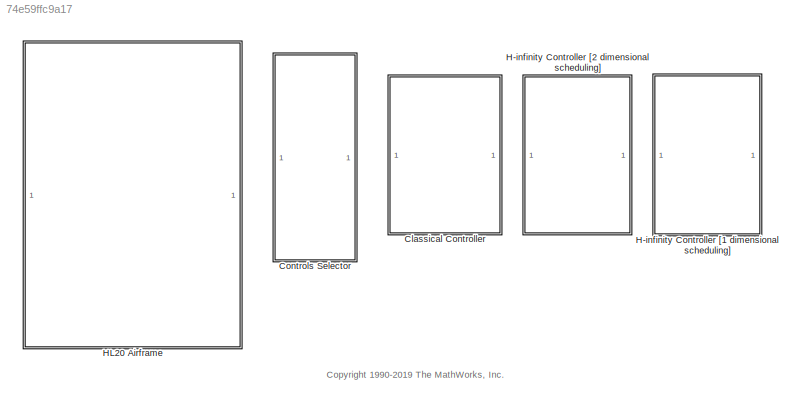
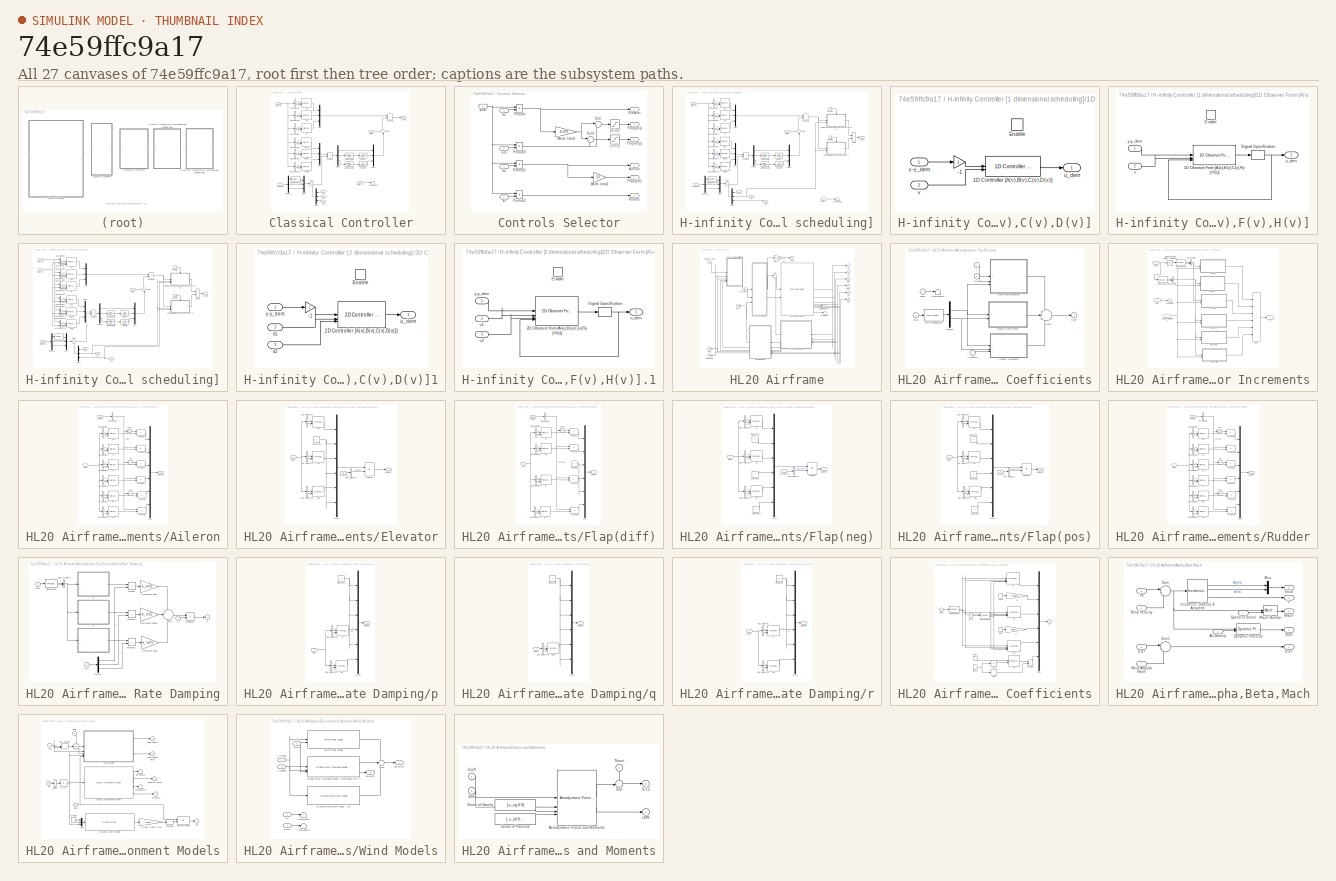
[diagram: thumbnail index - all 27 canvases of the model, root first then tree order]
MODEL slx_74e59ffc9a17
KIND library
CONFIG AbsTol = auto
CONFIG EnableMultiTasking = off
CONFIG FixedStep = auto
CONFIG MaxStep = auto
CONFIG MinStep = auto
CONFIG RelTol = 1e-3
CONFIG SampleTimeConstraint = Unconstrained
CONFIG SolverName = ode45
CONFIG StartTime = 0.0
CONFIG StopTime = 10.0
BLOCK [SubSystem] Classical Controller
BLOCK [Inport] Classical Controller/Alpha-sc
  Port = 4
BLOCK [Reference] Classical Controller/Angle Conversion  REF=aerolibconvert2/Angle Conversion
  SourceBlock = aerolibconvert2/Angle Conversion
  SourceType = Angle Conversion
BLOCK [Inport] Classical Controller/AoA
  Port = 5
  PortDimensions = 1
  Unit = deg
BLOCK [Inport] Classical Controller/AoS
  Port = 6
  PortDimensions = 1
  Unit = deg
BLOCK [Terminator] Classical Controller/AoS not used
BLOCK [Inport] Classical Controller/Beta-sc
  Port = 3
BLOCK [BusSelector] Classical Controller/Bus Selector
  OutputSignals = k,f
BLOCK [BusSelector] Classical Controller/Bus Selector10
  OutputSignals = k,f
BLOCK [BusSelector] Classical Controller/Bus Selector2
  OutputSignals = k,f
BLOCK [BusSelector] Classical Controller/Bus Selector4
  OutputSignals = k,f
BLOCK [BusSelector] Classical Controller/Bus Selector6
  OutputSignals = k,f
BLOCK [BusSelector] Classical Controller/Bus Selector8
  OutputSignals = k,f
BLOCK [Inport] Classical Controller/Demands
  PortDimensions = 3
  Unit = deg
BLOCK [Demux] Classical Controller/Demux
  DisplayOption = none
  Outputs = 3
BLOCK [Demux] Classical Controller/Demux2
  DisplayOption = none
  Outputs = 3
BLOCK [Interpolation_n-D] Classical Controller/Kalpha
  InputPortMap = u0,u1
  NumberOfTableDimensions = 1
  RemoveProtectionIndex = on
  Table = Kalpha_1
BLOCK [Interpolation_n-D] Classical Controller/Kbeta
  InputPortMap = u0,u1
  NumberOfTableDimensions = 1
  RemoveProtectionIndex = on
  Table = Kbeta_1
BLOCK [Interpolation_n-D] Classical Controller/Kp
  InputPortMap = u0,u1
  NumberOfTableDimensions = 1
  RemoveProtectionIndex = on
  Table = Kp_1
BLOCK [Interpolation_n-D] Classical Controller/Kphi
  InputPortMap = u0,u1
  NumberOfTableDimensions = 1
  RemoveProtectionIndex = on
  Table = Kphi_1
BLOCK [Interpolation_n-D] Classical Controller/Kq
  InputPortMap = u0,u1
  NumberOfTableDimensions = 1
  RemoveProtectionIndex = on
  Table = Kq_1
BLOCK [Interpolation_n-D] Classical Controller/Kr
  InputPortMap = u0,u1
  NumberOfTableDimensions = 1
  RemoveProtectionIndex = on
  Table = Kr_1
BLOCK [TransferFcn] Classical Controller/Low freq gain
  Denominator = [1 0]
  Numerator = [1 2]
BLOCK [TransferFcn] Classical Controller/Low freq gain2
  Denominator = [1 0]
  Numerator = [1 0.5]
BLOCK [Mux] Classical Controller/Mux
  DisplayOption = bar
  Inputs = [1,1,1]
BLOCK [Mux] Classical Controller/Mux1
  DisplayOption = bar
  Inputs = [1,1,1]
BLOCK [Mux] Classical Controller/Mux2
  DisplayOption = bar
  Inputs = 3
BLOCK [Mux] Classical Controller/Mux3
  DisplayOption = bar
  Inputs = [1,1,1]
  NameLocation = top
BLOCK [Mux] Classical Controller/Mux4
  DisplayOption = bar
  Inputs = [1,1,1]
BLOCK [Inport] Classical Controller/Phi
  Port = 7
  PortDimensions = 1
  Unit = rad
BLOCK [Product] Classical Controller/Product
  InputSameDT = on
  OutDataTypeStr = Inherit: Same as first input
  SaturateOnIntegerOverflow = on
BLOCK [Product] Classical Controller/Product1
  InputSameDT = on
  OutDataTypeStr = Inherit: Same as first input
  SaturateOnIntegerOverflow = on
BLOCK [Inport] Classical Controller/Rates
  Port = 2
  PortDimensions = 3
  Unit = rad/second
BLOCK [TransferFcn] Classical Controller/Roll-off
  Denominator = [1 10]
  Numerator = 10
BLOCK [TransferFcn] Classical Controller/Roll-off2
  Denominator = [1 10]
  Numerator = 10
BLOCK [Sum] Classical Controller/Sum1
  InputSameDT = on
  Inputs = |+-
  OutDataTypeStr = Inherit: Same as first input
  SaturateOnIntegerOverflow = on
BLOCK [Sum] Classical Controller/Sum2
  InputSameDT = on
  Inputs = -+|
  NameLocation = right
  OutDataTypeStr = Inherit: Same as first input
  SaturateOnIntegerOverflow = on
BLOCK [Outport] Classical Controller/u_dem
  InitialOutput = [0 0 0]
  OutputWhenDisabled = reset
  VectorParamsAs1DForOutWhenUnconnected = off
BLOCK [SubSystem] Controls Selector
BLOCK [Outport] Controls Selector/Aileron
  Unit = deg
  VectorParamsAs1DForOutWhenUnconnected = off
BLOCK [Outport] Controls Selector/Elevator
  Port = 2
  Unit = deg
  VectorParamsAs1DForOutWhenUnconnected = off
BLOCK [Outport] Controls Selector/Flap(diff)
  Port = 6
  Unit = deg
  VectorParamsAs1DForOutWhenUnconnected = off
BLOCK [Outport] Controls Selector/Flap(neg)
  Port = 5
  Unit = deg
  VectorParamsAs1DForOutWhenUnconnected = off
BLOCK [Outport] Controls Selector/Flap(pos)
  Port = 4
  Unit = deg
  VectorParamsAs1DForOutWhenUnconnected = off
BLOCK [Gain] Controls Selector/Match limits1
  Gain = 2.0*0
  OutDataTypeStr = Inherit: Same as input
  ParamDataTypeStr = Inherit: Same as input
  SaturateOnIntegerOverflow = on
BLOCK [Gain] Controls Selector/Match limits2
  Gain = 2.0
  OutDataTypeStr = Inherit: Same as input
  ParamDataTypeStr = Inherit: Same as input
  SaturateOnIntegerOverflow = on
BLOCK [Product] Controls Selector/Product
  InputSameDT = on
  Inputs = /*
  OutDataTypeStr = Inherit: Same as first input
  SaturateOnIntegerOverflow = on
BLOCK [Product] Controls Selector/Product1
  InputSameDT = on
  Inputs = /*
  OutDataTypeStr = Inherit: Same as first input
  SaturateOnIntegerOverflow = on
BLOCK [Product] Controls Selector/Product2
  InputSameDT = on
  Inputs = /*
  OutDataTypeStr = Inherit: Same as first input
  SaturateOnIntegerOverflow = on
BLOCK [Product] Controls Selector/Product3
  InputSameDT = on
  Inputs = /*
  OutDataTypeStr = Inherit: Same as first input
  SaturateOnIntegerOverflow = on
BLOCK [Outport] Controls Selector/Rudder
  Port = 3
  Unit = deg
  VectorParamsAs1DForOutWhenUnconnected = off
BLOCK [Sum] Controls Selector/Sum
  InputSameDT = on
  Inputs = |++
  OutDataTypeStr = Inherit: Same as first input
  SaturateOnIntegerOverflow = on
BLOCK [Sum] Controls Selector/Sum1
  InputSameDT = on
  Inputs = |+-
  OutDataTypeStr = Inherit: Same as first input
  SaturateOnIntegerOverflow = on
BLOCK [Saturate] Controls Selector/[-inf,0]
  LowerLimit = -inf
  UpperLimit = 0
BLOCK [Saturate] Controls Selector/[0,inf]
  LowerLimit = 0
  UpperLimit = inf
BLOCK [Inport] Controls Selector/a//b
  Port = 5
BLOCK [Inport] Controls Selector/da
BLOCK [Inport] Controls Selector/de
  Port = 2
BLOCK [Inport] Controls Selector/dr
  Port = 3
BLOCK [Inport] Controls Selector/qbar
  Port = 4
  Unit = pascal
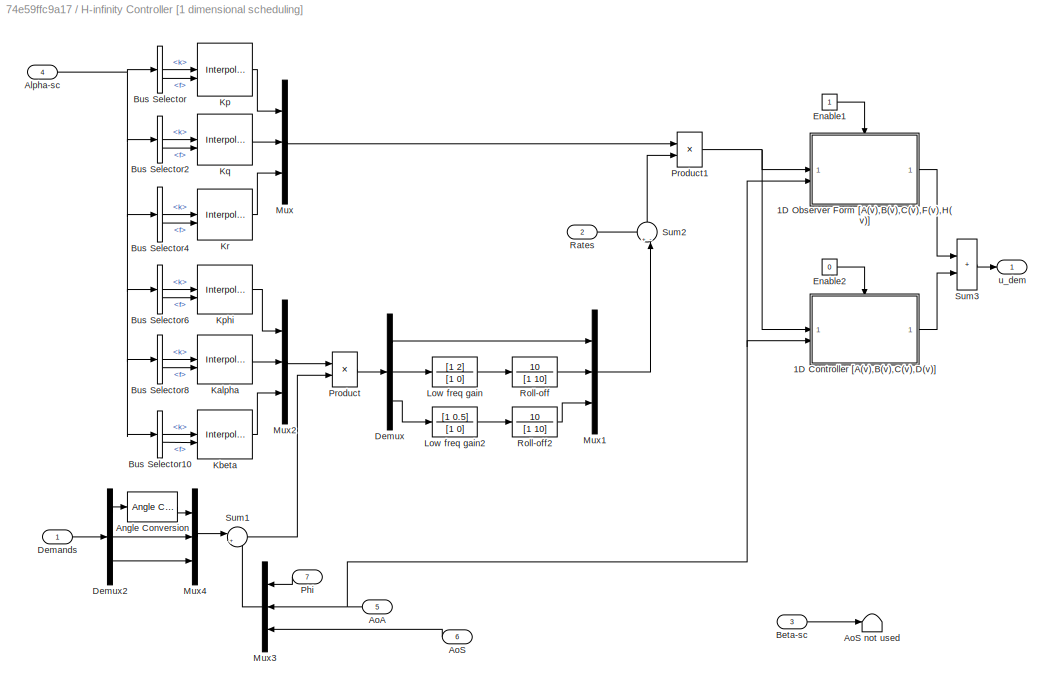
BLOCK [SubSystem] H-infinity Controller [1 dimensional scheduling]
BLOCK [SubSystem] H-infinity Controller [1 dimensional scheduling]/1D Controller [A(v),B(v),C(v),D(v)]
  TreatAsAtomicUnit = on
BLOCK [Gain] H-infinity Controller [1 dimensional scheduling]/1D Controller [A(v),B(v),C(v),D(v)]/-1
  Gain = -1
  OutDataTypeStr = Inherit: Same as input
  ParamDataTypeStr = Inherit: Same as input
  SaturateOnIntegerOverflow = on
BLOCK [Reference] H-infinity Controller [1 dimensional scheduling]/1D Controller [A(v),B(v),C(v),D(v)]/1D Controller [A(v),B(v),C(v),D(v)]  REF=aerolibschedule/1D Controller
[A(v),B(v),C(v),D(v)]
  SourceBlock = aerolibschedule/1D Controller\n[A(v),B(v),C(v),D(v)]
  SourceType = StateSpaceABCD-1D
BLOCK [EnablePort] H-infinity Controller [1 dimensional scheduling]/1D Controller [A(v),B(v),C(v),D(v)]/Enable
BLOCK [Outport] H-infinity Controller [1 dimensional scheduling]/1D Controller [A(v),B(v),C(v),D(v)]/u_dem
  InitialOutput = [0 0 0]
  OutputWhenDisabled = reset
  VectorParamsAs1DForOutWhenUnconnected = off
BLOCK [Inport] H-infinity Controller [1 dimensional scheduling]/1D Controller [A(v),B(v),C(v),D(v)]/v
  Port = 2
  PortDimensions = 1
BLOCK [Inport] H-infinity Controller [1 dimensional scheduling]/1D Controller [A(v),B(v),C(v),D(v)]/y-y_dem
  PortDimensions = 3
BLOCK [SubSystem] H-infinity Controller [1 dimensional scheduling]/1D Observer Form [A(v),B(v),C(v),F(v),H(v)]
  TreatAsAtomicUnit = on
BLOCK [Reference] H-infinity Controller [1 dimensional scheduling]/1D Observer Form [A(v),B(v),C(v),F(v),H(v)]/1D Observer Form [A(v),B(v),C(v),F(v),H(v)]  REF=aerolibschedule/1D Observer Form
[A(v),B(v),C(v),F(v),H(v)]
  SourceBlock = aerolibschedule/1D Observer Form\n[A(v),B(v),C(v),F(v),H(v)]
  SourceType = StateSpaceABCFH-1D
BLOCK [EnablePort] H-infinity Controller [1 dimensional scheduling]/1D Observer Form [A(v),B(v),C(v),F(v),H(v)]/Enable
BLOCK [SignalSpecification] H-infinity Controller [1 dimensional scheduling]/1D Observer Form [A(v),B(v),C(v),F(v),H(v)]/Signal Specification
  Dimensions = 3
BLOCK [Outport] H-infinity Controller [1 dimensional scheduling]/1D Observer Form [A(v),B(v),C(v),F(v),H(v)]/u_dem
  InitialOutput = [0 0 0]
  OutputWhenDisabled = reset
  VectorParamsAs1DForOutWhenUnconnected = off
BLOCK [Inport] H-infinity Controller [1 dimensional scheduling]/1D Observer Form [A(v),B(v),C(v),F(v),H(v)]/v
  Port = 2
  PortDimensions = 1
BLOCK [Inport] H-infinity Controller [1 dimensional scheduling]/1D Observer Form [A(v),B(v),C(v),F(v),H(v)]/y-y_dem
  PortDimensions = 3
BLOCK [Inport] H-infinity Controller [1 dimensional scheduling]/Alpha-sc
  Port = 4
BLOCK [Reference] H-infinity Controller [1 dimensional scheduling]/Angle Conversion  REF=aerolibconvert2/Angle Conversion
  SourceBlock = aerolibconvert2/Angle Conversion
  SourceType = Angle Conversion
BLOCK [Inport] H-infinity Controller [1 dimensional scheduling]/AoA
  Port = 5
  PortDimensions = 1
  Unit = deg
BLOCK [Inport] H-infinity Controller [1 dimensional scheduling]/AoS
  Port = 6
  PortDimensions = 1
  Unit = deg
BLOCK [Terminator] H-infinity Controller [1 dimensional scheduling]/AoS not used
BLOCK [Inport] H-infinity Controller [1 dimensional scheduling]/Beta-sc
  Port = 3
BLOCK [BusSelector] H-infinity Controller [1 dimensional scheduling]/Bus Selector
  OutputSignals = k,f
BLOCK [BusSelector] H-infinity Controller [1 dimensional scheduling]/Bus Selector10
  OutputSignals = k,f
BLOCK [BusSelector] H-infinity Controller [1 dimensional scheduling]/Bus Selector2
  OutputSignals = k,f
BLOCK [BusSelector] H-infinity Controller [1 dimensional scheduling]/Bus Selector4
  OutputSignals = k,f
BLOCK [BusSelector] H-infinity Controller [1 dimensional scheduling]/Bus Selector6
  OutputSignals = k,f
BLOCK [BusSelector] H-infinity Controller [1 dimensional scheduling]/Bus Selector8
  OutputSignals = k,f
BLOCK [Inport] H-infinity Controller [1 dimensional scheduling]/Demands
  PortDimensions = 3
  Unit = deg
BLOCK [Demux] H-infinity Controller [1 dimensional scheduling]/Demux
  DisplayOption = none
  Outputs = 3
BLOCK [Demux] H-infinity Controller [1 dimensional scheduling]/Demux2
  DisplayOption = none
  Outputs = 3
BLOCK [Constant] H-infinity Controller [1 dimensional scheduling]/Enable1
BLOCK [Constant] H-infinity Controller [1 dimensional scheduling]/Enable2
  Value = 0
BLOCK [Interpolation_n-D] H-infinity Controller [1 dimensional scheduling]/Kalpha
  InputPortMap = u0,u1
  NumberOfTableDimensions = 1
  RemoveProtectionIndex = on
  Table = Kalpha_1
BLOCK [Interpolation_n-D] H-infinity Controller [1 dimensional scheduling]/Kbeta
  InputPortMap = u0,u1
  NumberOfTableDimensions = 1
  RemoveProtectionIndex = on
  Table = Kbeta_1
BLOCK [Interpolation_n-D] H-infinity Controller [1 dimensional scheduling]/Kp
  InputPortMap = u0,u1
  NumberOfTableDimensions = 1
  RemoveProtectionIndex = on
  Table = Kp_1
BLOCK [Interpolation_n-D] H-infinity Controller [1 dimensional scheduling]/Kphi
  InputPortMap = u0,u1
  NumberOfTableDimensions = 1
  RemoveProtectionIndex = on
  Table = Kphi_1
BLOCK [Interpolation_n-D] H-infinity Controller [1 dimensional scheduling]/Kq
  InputPortMap = u0,u1
  NumberOfTableDimensions = 1
  RemoveProtectionIndex = on
  Table = Kq_1
BLOCK [Interpolation_n-D] H-infinity Controller [1 dimensional scheduling]/Kr
  InputPortMap = u0,u1
  NumberOfTableDimensions = 1
  RemoveProtectionIndex = on
  Table = Kr_1
BLOCK [TransferFcn] H-infinity Controller [1 dimensional scheduling]/Low freq gain
  Denominator = [1 0]
  Numerator = [1 2]
BLOCK [TransferFcn] H-infinity Controller [1 dimensional scheduling]/Low freq gain2
  Denominator = [1 0]
  Numerator = [1 0.5]
BLOCK [Mux] H-infinity Controller [1 dimensional scheduling]/Mux
  DisplayOption = bar
  Inputs = [1,1,1]
BLOCK [Mux] H-infinity Controller [1 dimensional scheduling]/Mux1
  DisplayOption = bar
  Inputs = [1,1,1]
BLOCK [Mux] H-infinity Controller [1 dimensional scheduling]/Mux2
  DisplayOption = bar
  Inputs = 3
BLOCK [Mux] H-infinity Controller [1 dimensional scheduling]/Mux3
  DisplayOption = bar
  Inputs = [1,1,1]
  NameLocation = top
BLOCK [Mux] H-infinity Controller [1 dimensional scheduling]/Mux4
  DisplayOption = bar
  Inputs = [1,1,1]
BLOCK [Inport] H-infinity Controller [1 dimensional scheduling]/Phi
  Port = 7
  PortDimensions = 1
  Unit = radian
BLOCK [Product] H-infinity Controller [1 dimensional scheduling]/Product
  InputSameDT = on
  OutDataTypeStr = Inherit: Same as first input
  SaturateOnIntegerOverflow = on
BLOCK [Product] H-infinity Controller [1 dimensional scheduling]/Product1
  InputSameDT = on
  OutDataTypeStr = Inherit: Same as first input
  SaturateOnIntegerOverflow = on
BLOCK [Inport] H-infinity Controller [1 dimensional scheduling]/Rates
  Port = 2
  PortDimensions = 3
  Unit = rad/second
BLOCK [TransferFcn] H-infinity Controller [1 dimensional scheduling]/Roll-off
  Denominator = [1 10]
  Numerator = 10
BLOCK [TransferFcn] H-infinity Controller [1 dimensional scheduling]/Roll-off2
  Denominator = [1 10]
  Numerator = 10
BLOCK [Sum] H-infinity Controller [1 dimensional scheduling]/Sum1
  InputSameDT = on
  Inputs = |+-
  OutDataTypeStr = Inherit: Same as first input
  SaturateOnIntegerOverflow = on
BLOCK [Sum] H-infinity Controller [1 dimensional scheduling]/Sum2
  InputSameDT = on
  Inputs = +-|
  NameLocation = right
  OutDataTypeStr = Inherit: Same as first input
  SaturateOnIntegerOverflow = on
BLOCK [Sum] H-infinity Controller [1 dimensional scheduling]/Sum3
  IconShape = rectangular
  InputSameDT = on
  OutDataTypeStr = Inherit: Same as first input
  SaturateOnIntegerOverflow = on
BLOCK [Outport] H-infinity Controller [1 dimensional scheduling]/u_dem
  InitialOutput = [0 0 0]
  OutputWhenDisabled = reset
  VectorParamsAs1DForOutWhenUnconnected = off
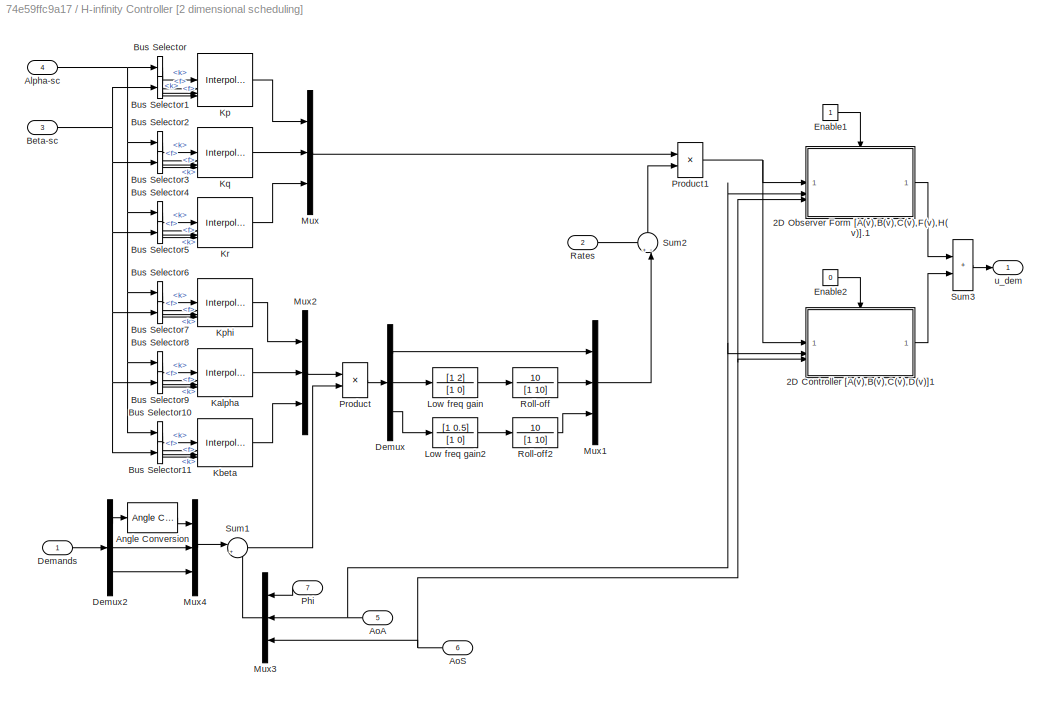
BLOCK [SubSystem] H-infinity Controller [2 dimensional scheduling]
BLOCK [SubSystem] H-infinity Controller [2 dimensional scheduling]/2D Controller [A(v),B(v),C(v),D(v)]1
  TreatAsAtomicUnit = on
BLOCK [Gain] H-infinity Controller [2 dimensional scheduling]/2D Controller [A(v),B(v),C(v),D(v)]1/-1
  Gain = -1
  OutDataTypeStr = Inherit: Same as input
  ParamDataTypeStr = Inherit: Same as input
  SaturateOnIntegerOverflow = on
BLOCK [Reference] H-infinity Controller [2 dimensional scheduling]/2D Controller [A(v),B(v),C(v),D(v)]1/2D Controller [A(v),B(v),C(v),D(v)]1  REF=aerolibschedule/2D Controller
[A(v),B(v),C(v),D(v)]
  SourceBlock = aerolibschedule/2D Controller\n[A(v),B(v),C(v),D(v)]
  SourceType = StateSpaceABCD-2D
BLOCK [EnablePort] H-infinity Controller [2 dimensional scheduling]/2D Controller [A(v),B(v),C(v),D(v)]1/Enable
BLOCK [Outport] H-infinity Controller [2 dimensional scheduling]/2D Controller [A(v),B(v),C(v),D(v)]1/u_dem
  InitialOutput = [0 0 0]
  OutputWhenDisabled = reset
  VectorParamsAs1DForOutWhenUnconnected = off
BLOCK [Inport] H-infinity Controller [2 dimensional scheduling]/2D Controller [A(v),B(v),C(v),D(v)]1/v1
  Port = 2
  PortDimensions = 1
BLOCK [Inport] H-infinity Controller [2 dimensional scheduling]/2D Controller [A(v),B(v),C(v),D(v)]1/v2
  Port = 3
  PortDimensions = 1
BLOCK [Inport] H-infinity Controller [2 dimensional scheduling]/2D Controller [A(v),B(v),C(v),D(v)]1/y-y_dem
  PortDimensions = 3
BLOCK [SubSystem] H-infinity Controller [2 dimensional scheduling]/2D Observer Form [A(v),B(v),C(v),F(v),H(v)].1
  TreatAsAtomicUnit = on
BLOCK [Reference] H-infinity Controller [2 dimensional scheduling]/2D Observer Form [A(v),B(v),C(v),F(v),H(v)].1/2D Observer Form [A(v),B(v),C(v),F(v),H(v)]  REF=aerolibschedule/2D Observer Form
[A(v),B(v),C(v),F(v),H(v)]
  SourceBlock = aerolibschedule/2D Observer Form\n[A(v),B(v),C(v),F(v),H(v)]
  SourceType = StateSpaceABCFH-2D
BLOCK [EnablePort] H-infinity Controller [2 dimensional scheduling]/2D Observer Form [A(v),B(v),C(v),F(v),H(v)].1/Enable
BLOCK [SignalSpecification] H-infinity Controller [2 dimensional scheduling]/2D Observer Form [A(v),B(v),C(v),F(v),H(v)].1/Signal Specification
  Dimensions = 3
BLOCK [Outport] H-infinity Controller [2 dimensional scheduling]/2D Observer Form [A(v),B(v),C(v),F(v),H(v)].1/u_dem
  InitialOutput = [0 0 0]
  OutputWhenDisabled = reset
  VectorParamsAs1DForOutWhenUnconnected = off
BLOCK [Inport] H-infinity Controller [2 dimensional scheduling]/2D Observer Form [A(v),B(v),C(v),F(v),H(v)].1/v1
  Port = 2
  PortDimensions = 1
BLOCK [Inport] H-infinity Controller [2 dimensional scheduling]/2D Observer Form [A(v),B(v),C(v),F(v),H(v)].1/v2
  Port = 3
  PortDimensions = 1
BLOCK [Inport] H-infinity Controller [2 dimensional scheduling]/2D Observer Form [A(v),B(v),C(v),F(v),H(v)].1/y-y_dem
  PortDimensions = 3
BLOCK [Inport] H-infinity Controller [2 dimensional scheduling]/Alpha-sc
  Port = 4
BLOCK [Reference] H-infinity Controller [2 dimensional scheduling]/Angle Conversion  REF=aerolibconvert2/Angle Conversion
  SourceBlock = aerolibconvert2/Angle Conversion
  SourceType = Angle Conversion
BLOCK [Inport] H-infinity Controller [2 dimensional scheduling]/AoA
  Port = 5
  PortDimensions = 1
  Unit = deg
BLOCK [Inport] H-infinity Controller [2 dimensional scheduling]/AoS
  Port = 6
  PortDimensions = 1
  Unit = deg
BLOCK [Inport] H-infinity Controller [2 dimensional scheduling]/Beta-sc
  Port = 3
BLOCK [BusSelector] H-infinity Controller [2 dimensional scheduling]/Bus Selector
  OutputSignals = k,f
BLOCK [BusSelector] H-infinity Controller [2 dimensional scheduling]/Bus Selector1
  OutputSignals = k,f
BLOCK [BusSelector] H-infinity Controller [2 dimensional scheduling]/Bus Selector10
  OutputSignals = k,f
BLOCK [BusSelector] H-infinity Controller [2 dimensional scheduling]/Bus Selector11
  OutputSignals = k,f
BLOCK [BusSelector] H-infinity Controller [2 dimensional scheduling]/Bus Selector2
  OutputSignals = k,f
BLOCK [BusSelector] H-infinity Controller [2 dimensional scheduling]/Bus Selector3
  OutputSignals = k,f
BLOCK [BusSelector] H-infinity Controller [2 dimensional scheduling]/Bus Selector4
  OutputSignals = k,f
BLOCK [BusSelector] H-infinity Controller [2 dimensional scheduling]/Bus Selector5
  OutputSignals = k,f
BLOCK [BusSelector] H-infinity Controller [2 dimensional scheduling]/Bus Selector6
  OutputSignals = k,f
BLOCK [BusSelector] H-infinity Controller [2 dimensional scheduling]/Bus Selector7
  OutputSignals = k,f
BLOCK [BusSelector] H-infinity Controller [2 dimensional scheduling]/Bus Selector8
  OutputSignals = k,f
BLOCK [BusSelector] H-infinity Controller [2 dimensional scheduling]/Bus Selector9
  OutputSignals = k,f
BLOCK [Inport] H-infinity Controller [2 dimensional scheduling]/Demands
  PortDimensions = 3
  Unit = degree
BLOCK [Demux] H-infinity Controller [2 dimensional scheduling]/Demux
  DisplayOption = none
  Outputs = 3
BLOCK [Demux] H-infinity Controller [2 dimensional scheduling]/Demux2
  DisplayOption = none
  Outputs = 3
BLOCK [Constant] H-infinity Controller [2 dimensional scheduling]/Enable1
BLOCK [Constant] H-infinity Controller [2 dimensional scheduling]/Enable2
  Value = 0
BLOCK [Interpolation_n-D] H-infinity Controller [2 dimensional scheduling]/Kalpha
  InputPortMap = u0,u1,u2,u3
  RemoveProtectionIndex = on
  Table = Kalpha
BLOCK [Interpolation_n-D] H-infinity Controller [2 dimensional scheduling]/Kbeta
  InputPortMap = u0,u1,u2,u3
  RemoveProtectionIndex = on
  Table = Kbeta
BLOCK [Interpolation_n-D] H-infinity Controller [2 dimensional scheduling]/Kp
  InputPortMap = u0,u1,u2,u3
  RemoveProtectionIndex = on
  Table = Kp
BLOCK [Interpolation_n-D] H-infinity Controller [2 dimensional scheduling]/Kphi
  InputPortMap = u0,u1,u2,u3
  RemoveProtectionIndex = on
  Table = Kphi
BLOCK [Interpolation_n-D] H-infinity Controller [2 dimensional scheduling]/Kq
  InputPortMap = u0,u1,u2,u3
  RemoveProtectionIndex = on
  Table = Kq
BLOCK [Interpolation_n-D] H-infinity Controller [2 dimensional scheduling]/Kr
  InputPortMap = u0,u1,u2,u3
  RemoveProtectionIndex = on
  Table = Kr
BLOCK [TransferFcn] H-infinity Controller [2 dimensional scheduling]/Low freq gain
  Denominator = [1 0]
  Numerator = [1 2]
BLOCK [TransferFcn] H-infinity Controller [2 dimensional scheduling]/Low freq gain2
  Denominator = [1 0]
  Numerator = [1 0.5]
BLOCK [Mux] H-infinity Controller [2 dimensional scheduling]/Mux
  DisplayOption = bar
  Inputs = [1,1,1]
BLOCK [Mux] H-infinity Controller [2 dimensional scheduling]/Mux1
  DisplayOption = bar
  Inputs = [1,1,1]
BLOCK [Mux] H-infinity Controller [2 dimensional scheduling]/Mux2
  DisplayOption = bar
  Inputs = 3
BLOCK [Mux] H-infinity Controller [2 dimensional scheduling]/Mux3
  DisplayOption = bar
  Inputs = [1,1,1]
  NameLocation = top
BLOCK [Mux] H-infinity Controller [2 dimensional scheduling]/Mux4
  DisplayOption = bar
  Inputs = [1,1,1]
BLOCK [Inport] H-infinity Controller [2 dimensional scheduling]/Phi
  Port = 7
  PortDimensions = 1
  Unit = radian
BLOCK [Product] H-infinity Controller [2 dimensional scheduling]/Product
  InputSameDT = on
  OutDataTypeStr = Inherit: Same as first input
  SaturateOnIntegerOverflow = on
BLOCK [Product] H-infinity Controller [2 dimensional scheduling]/Product1
  InputSameDT = on
  OutDataTypeStr = Inherit: Same as first input
  SaturateOnIntegerOverflow = on
BLOCK [Inport] H-infinity Controller [2 dimensional scheduling]/Rates
  Port = 2
  PortDimensions = 3
  Unit = rad/second
BLOCK [TransferFcn] H-infinity Controller [2 dimensional scheduling]/Roll-off
  Denominator = [1 10]
  Numerator = 10
BLOCK [TransferFcn] H-infinity Controller [2 dimensional scheduling]/Roll-off2
  Denominator = [1 10]
  Numerator = 10
BLOCK [Sum] H-infinity Controller [2 dimensional scheduling]/Sum1
  InputSameDT = on
  Inputs = |+-
  OutDataTypeStr = Inherit: Same as first input
  SaturateOnIntegerOverflow = on
BLOCK [Sum] H-infinity Controller [2 dimensional scheduling]/Sum2
  InputSameDT = on
  Inputs = +-|
  NameLocation = right
  OutDataTypeStr = Inherit: Same as first input
  SaturateOnIntegerOverflow = on
BLOCK [Sum] H-infinity Controller [2 dimensional scheduling]/Sum3
  IconShape = rectangular
  InputSameDT = on
  OutDataTypeStr = Inherit: Same as first input
  SaturateOnIntegerOverflow = on
BLOCK [Outport] H-infinity Controller [2 dimensional scheduling]/u_dem
  InitialOutput = [0 0 0]
  OutputWhenDisabled = reset
  VectorParamsAs1DForOutWhenUnconnected = off
BLOCK [SubSystem] HL20 Airframe
BLOCK [Reference] HL20 Airframe/6DOF (Euler Angles)  REF=shared6dof/6DOF (Euler Angles)
  SourceBlock = shared6dof/6DOF (Euler Angles)
  SourceType = 6DOF EoM (Body Axis)
BLOCK [Outport] HL20 Airframe/Accels
  InitialOutput = 0
  Port = 5
  Unit = m/s^2
  VectorParamsAs1DForOutWhenUnconnected = off
BLOCK [Inport] HL20 Airframe/Actuators (deg)
  Unit = deg
BLOCK [SubSystem] HL20 Airframe/Aerodynamic Coefficients
BLOCK [SubSystem] HL20 Airframe/Aerodynamic Coefficients/Actuator Increments
BLOCK [Saturate] HL20 Airframe/Aerodynamic Coefficients/Actuator Increments/(0 to inf) Constants Held fixed for alpha<0
  LowerLimit = 0
  UpperLimit = inf
BLOCK [Inport] HL20 Airframe/Aerodynamic Coefficients/Actuator Increments/Actuator Deflections 
  Port = 3
  Unit = deg
BLOCK [SubSystem] HL20 Airframe/Aerodynamic Coefficients/Actuator Increments/Aileron
BLOCK [Abs] HL20 Airframe/Aerodynamic Coefficients/Actuator Increments/Aileron/Abs
BLOCK [Abs] HL20 Airframe/Aerodynamic Coefficients/Actuator Increments/Aileron/Abs1
BLOCK [Abs] HL20 Airframe/Aerodynamic Coefficients/Actuator Increments/Aileron/Abs2
BLOCK [Inport] HL20 Airframe/Aerodynamic Coefficients/Actuator Increments/Aileron/Actuators
  Port = 2
BLOCK [Inport] HL20 Airframe/Aerodynamic Coefficients/Actuator Increments/Aileron/Alpha
  NameLocation = top
BLOCK [BusSelector] HL20 Airframe/Aerodynamic Coefficients/Actuator Increments/Aileron/Bus Selector
  OutputSignals = Aileron
BLOCK [BusSelector] HL20 Airframe/Aerodynamic Coefficients/Actuator Increments/Aileron/Bus Selector1
  OutputSignals = k,f
BLOCK [BusSelector] HL20 Airframe/Aerodynamic Coefficients/Actuator Increments/Aileron/Bus Selector2
  OutputSignals = k,f
BLOCK [BusSelector] HL20 Airframe/Aerodynamic Coefficients/Actuator Increments/Aileron/Bus Selector3
  OutputSignals = k,f
BLOCK [BusSelector] HL20 Airframe/Aerodynamic Coefficients/Actuator Increments/Aileron/Bus Selector4
  OutputSignals = k,f
BLOCK [BusSelector] HL20 Airframe/Aerodynamic Coefficients/Actuator Increments/Aileron/Bus Selector5
  OutputSignals = k,f
BLOCK [BusSelector] HL20 Airframe/Aerodynamic Coefficients/Actuator Increments/Aileron/Bus Selector6
  OutputSignals = k,f
BLOCK [Interpolation_n-D] HL20 Airframe/Aerodynamic Coefficients/Actuator Increments/Aileron/Cl
  InputPortMap = u0,u1
  NumberOfTableDimensions = 1
  RemoveProtectionIndex = on
  Table = Clda
BLOCK [Interpolation_n-D] HL20 Airframe/Aerodynamic Coefficients/Actuator Increments/Aileron/Cm
  InputPortMap = u0,u1
  NumberOfTableDimensions = 1
  RemoveProtectionIndex = on
  Table = Cmda
BLOCK [Interpolation_n-D] HL20 Airframe/Aerodynamic Coefficients/Actuator Increments/Aileron/Cn
  InputPortMap = u0,u1
  NumberOfTableDimensions = 1
  RemoveProtectionIndex = on
  Table = Cnda
BLOCK [Interpolation_n-D] HL20 Airframe/Aerodynamic Coefficients/Actuator Increments/Aileron/Cx
  InputPortMap = u0,u1
  NumberOfTableDimensions = 1
  RemoveProtectionIndex = on
  Table = CXda
BLOCK [Interpolation_n-D] HL20 Airframe/Aerodynamic Coefficients/Actuator Increments/Aileron/Cy
  InputPortMap = u0,u1
  NumberOfTableDimensions = 1
  RemoveProtectionIndex = on
  Table = CYda
BLOCK [Interpolation_n-D] HL20 Airframe/Aerodynamic Coefficients/Actuator Increments/Aileron/Cz
  InputPortMap = u0,u1
  NumberOfTableDimensions = 1
  RemoveProtectionIndex = on
  Table = CZda
BLOCK [Mux] HL20 Airframe/Aerodynamic Coefficients/Actuator Increments/Aileron/Mux1
  Inputs = 6
BLOCK [Product] HL20 Airframe/Aerodynamic Coefficients/Actuator Increments/Aileron/Product1
  InputSameDT = on
  OutDataTypeStr = Inherit: Same as first input
  SaturateOnIntegerOverflow = on
BLOCK [Product] HL20 Airframe/Aerodynamic Coefficients/Actuator Increments/Aileron/Product2
  InputSameDT = on
  OutDataTypeStr = Inherit: Same as first input
  SaturateOnIntegerOverflow = on
BLOCK [Product] HL20 Airframe/Aerodynamic Coefficients/Actuator Increments/Aileron/Product3
  InputSameDT = on
  OutDataTypeStr = Inherit: Same as first input
  SaturateOnIntegerOverflow = on
BLOCK [Product] HL20 Airframe/Aerodynamic Coefficients/Actuator Increments/Aileron/Product4
  InputSameDT = on
  OutDataTypeStr = Inherit: Same as first input
  SaturateOnIntegerOverflow = on
BLOCK [Product] HL20 Airframe/Aerodynamic Coefficients/Actuator Increments/Aileron/Product5
  InputSameDT = on
  OutDataTypeStr = Inherit: Same as first input
  SaturateOnIntegerOverflow = on
BLOCK [Product] HL20 Airframe/Aerodynamic Coefficients/Actuator Increments/Aileron/Product6
  InputSameDT = on
  OutDataTypeStr = Inherit: Same as first input
  SaturateOnIntegerOverflow = on
BLOCK [Outport] HL20 Airframe/Aerodynamic Coefficients/Actuator Increments/Aileron/delCoeff
  VectorParamsAs1DForOutWhenUnconnected = off
BLOCK [Inport] HL20 Airframe/Aerodynamic Coefficients/Actuator Increments/Alpha
  Unit = deg
BLOCK [PreLookup] HL20 Airframe/Aerodynamic Coefficients/Actuator Increments/AlphaLookup
  BeginIndexSearchUsingPreviousIndexResult = on
  BreakpointsData = alpha_vec_0
  ExtrapMethod = Linear
  InputPortMap = u0
BLOCK [PreLookup] HL20 Airframe/Aerodynamic Coefficients/Actuator Increments/AlphaLookup0
  BeginIndexSearchUsingPreviousIndexResult = on
  BreakpointsData = alpha_vec_0
  ExtrapMethod = Linear
  InputPortMap = u0
BLOCK [Inport] HL20 Airframe/Aerodynamic Coefficients/Actuator Increments/Beta
  Port = 2
  Unit = deg
BLOCK [BusCreator] HL20 Airframe/Aerodynamic Coefficients/Actuator Increments/Bus Creator
  DisplayOption = bar
  InheritFromInputs = on
  Inputs = 2
BLOCK [BusCreator] HL20 Airframe/Aerodynamic Coefficients/Actuator Increments/Bus Creator1
  DisplayOption = bar
  InheritFromInputs = on
  Inputs = 2
BLOCK [SubSystem] HL20 Airframe/Aerodynamic Coefficients/Actuator Increments/Elevator
BLOCK [Inport] HL20 Airframe/Aerodynamic Coefficients/Actuator Increments/Elevator/Actuators
  Port = 2
BLOCK [Inport] HL20 Airframe/Aerodynamic Coefficients/Actuator Increments/Elevator/Alpha
  NameLocation = top
BLOCK [BusSelector] HL20 Airframe/Aerodynamic Coefficients/Actuator Increments/Elevator/Bus Selector1
  OutputSignals = Elevator
BLOCK [BusSelector] HL20 Airframe/Aerodynamic Coefficients/Actuator Increments/Elevator/Bus Selector2
  OutputSignals = k,f
BLOCK [BusSelector] HL20 Airframe/Aerodynamic Coefficients/Actuator Increments/Elevator/Bus Selector3
  OutputSignals = k,f
BLOCK [BusSelector] HL20 Airframe/Aerodynamic Coefficients/Actuator Increments/Elevator/Bus Selector5
  OutputSignals = k,f
BLOCK [Interpolation_n-D] HL20 Airframe/Aerodynamic Coefficients/Actuator Increments/Elevator/Cm
  InputPortMap = u0,u1
  NumberOfTableDimensions = 1
  RemoveProtectionIndex = on
  Table = Cmde
BLOCK [Constant] HL20 Airframe/Aerodynamic Coefficients/Actuator Increments/Elevator/Constant1
  Value = 0
BLOCK [Interpolation_n-D] HL20 Airframe/Aerodynamic Coefficients/Actuator Increments/Elevator/Cx
  InputPortMap = u0,u1
  NumberOfTableDimensions = 1
  RemoveProtectionIndex = on
  Table = CXde
BLOCK [Interpolation_n-D] HL20 Airframe/Aerodynamic Coefficients/Actuator Increments/Elevator/Cz
  InputPortMap = u0,u1
  NumberOfTableDimensions = 1
  RemoveProtectionIndex = on
  Table = CZde
BLOCK [Mux] HL20 Airframe/Aerodynamic Coefficients/Actuator Increments/Elevator/Mux1
  Inputs = 6
BLOCK [Product] HL20 Airframe/Aerodynamic Coefficients/Actuator Increments/Elevator/Product
  InputSameDT = on
  OutDataTypeStr = Inherit: Same as first input
  SaturateOnIntegerOverflow = on
BLOCK [Outport] HL20 Airframe/Aerodynamic Coefficients/Actuator Increments/Elevator/delCoeff
  VectorParamsAs1DForOutWhenUnconnected = off
BLOCK [SubSystem] HL20 Airframe/Aerodynamic Coefficients/Actuator Increments/Flap(diff)
BLOCK [Abs] HL20 Airframe/Aerodynamic Coefficients/Actuator Increments/Flap(diff)/Abs2
BLOCK [Inport] HL20 Airframe/Aerodynamic Coefficients/Actuator Increments/Flap(diff)/Actuators
  Port = 2
BLOCK [Inport] HL20 Airframe/Aerodynamic Coefficients/Actuator Increments/Flap(diff)/Alpha
  NameLocation = top
BLOCK [BusSelector] HL20 Airframe/Aerodynamic Coefficients/Actuator Increments/Flap(diff)/Bus Selector
  OutputSignals = Flap(diff)
BLOCK [BusSelector] HL20 Airframe/Aerodynamic Coefficients/Actuator Increments/Flap(diff)/Bus Selector1
  OutputSignals = k,f
BLOCK [BusSelector] HL20 Airframe/Aerodynamic Coefficients/Actuator Increments/Flap(diff)/Bus Selector2
  OutputSignals = k,f
BLOCK [BusSelector] HL20 Airframe/Aerodynamic Coefficients/Actuator Increments/Flap(diff)/Bus Selector4
  OutputSignals = k,f
BLOCK [BusSelector] HL20 Airframe/Aerodynamic Coefficients/Actuator Increments/Flap(diff)/Bus Selector6
  OutputSignals = k,f
BLOCK [Interpolation_n-D] HL20 Airframe/Aerodynamic Coefficients/Actuator Increments/Flap(diff)/Cl
  InputPortMap = u0,u1
  NumberOfTableDimensions = 1
  RemoveProtectionIndex = on
  Table = Clddf
BLOCK [Interpolation_n-D] HL20 Airframe/Aerodynamic Coefficients/Actuator Increments/Flap(diff)/Cn
  InputPortMap = u0,u1
  NumberOfTableDimensions = 1
  RemoveProtectionIndex = on
  Table = Cnddf
BLOCK [Constant] HL20 Airframe/Aerodynamic Coefficients/Actuator Increments/Flap(diff)/Constant1
  Value = 0
BLOCK [Interpolation_n-D] HL20 Airframe/Aerodynamic Coefficients/Actuator Increments/Flap(diff)/Cx
  InputPortMap = u0,u1
  NumberOfTableDimensions = 1
  RemoveProtectionIndex = on
  Table = CXddf
BLOCK [Interpolation_n-D] HL20 Airframe/Aerodynamic Coefficients/Actuator Increments/Flap(diff)/Cy
  InputPortMap = u0,u1
  NumberOfTableDimensions = 1
  RemoveProtectionIndex = on
  Table = CYddf
BLOCK [Mux] HL20 Airframe/Aerodynamic Coefficients/Actuator Increments/Flap(diff)/Mux1
  Inputs = 6
BLOCK [Product] HL20 Airframe/Aerodynamic Coefficients/Actuator Increments/Flap(diff)/Product
  InputSameDT = on
  OutDataTypeStr = Inherit: Same as first input
  SaturateOnIntegerOverflow = on
BLOCK [Product] HL20 Airframe/Aerodynamic Coefficients/Actuator Increments/Flap(diff)/Product1
  InputSameDT = on
  OutDataTypeStr = Inherit: Same as first input
  SaturateOnIntegerOverflow = on
BLOCK [Product] HL20 Airframe/Aerodynamic Coefficients/Actuator Increments/Flap(diff)/Product2
  InputSameDT = on
  OutDataTypeStr = Inherit: Same as first input
  SaturateOnIntegerOverflow = on
BLOCK [Product] HL20 Airframe/Aerodynamic Coefficients/Actuator Increments/Flap(diff)/Product3
  InputSameDT = on
  OutDataTypeStr = Inherit: Same as first input
  SaturateOnIntegerOverflow = on
BLOCK [Outport] HL20 Airframe/Aerodynamic Coefficients/Actuator Increments/Flap(diff)/delCoeff
  VectorParamsAs1DForOutWhenUnconnected = off
BLOCK [SubSystem] HL20 Airframe/Aerodynamic Coefficients/Actuator Increments/Flap(neg)
BLOCK [Inport] HL20 Airframe/Aerodynamic Coefficients/Actuator Increments/Flap(neg)/Actuators
  Port = 2
BLOCK [Inport] HL20 Airframe/Aerodynamic Coefficients/Actuator Increments/Flap(neg)/Alpha
  NameLocation = top
BLOCK [BusSelector] HL20 Airframe/Aerodynamic Coefficients/Actuator Increments/Flap(neg)/Bus Selector
  OutputSignals = Flap(neg)
BLOCK [BusSelector] HL20 Airframe/Aerodynamic Coefficients/Actuator Increments/Flap(neg)/Bus Selector1
  OutputSignals = k,f
BLOCK [BusSelector] HL20 Airframe/Aerodynamic Coefficients/Actuator Increments/Flap(neg)/Bus Selector3
  OutputSignals = k,f
BLOCK [BusSelector] HL20 Airframe/Aerodynamic Coefficients/Actuator Increments/Flap(neg)/Bus Selector5
  OutputSignals = k,f
BLOCK [Interpolation_n-D] HL20 Airframe/Aerodynamic Coefficients/Actuator Increments/Flap(neg)/Cm
  InputPortMap = u0,u1
  NumberOfTableDimensions = 1
  RemoveProtectionIndex = on
  Table = Cmdfn
BLOCK [Constant] HL20 Airframe/Aerodynamic Coefficients/Actuator Increments/Flap(neg)/Constant1
  Value = 0
BLOCK [Constant] HL20 Airframe/Aerodynamic Coefficients/Actuator Increments/Flap(neg)/Constant2
  Value = 0
BLOCK [Constant] HL20 Airframe/Aerodynamic Coefficients/Actuator Increments/Flap(neg)/Constant3
  Value = 0
BLOCK [Interpolation_n-D] HL20 Airframe/Aerodynamic Coefficients/Actuator Increments/Flap(neg)/Cx
  InputPortMap = u0,u1
  NumberOfTableDimensions = 1
  RemoveProtectionIndex = on
  Table = CXdfn
BLOCK [Interpolation_n-D] HL20 Airframe/Aerodynamic Coefficients/Actuator Increments/Flap(neg)/Cz
  InputPortMap = u0,u1
  NumberOfTableDimensions = 1
  RemoveProtectionIndex = on
  Table = CZdfn
BLOCK [Mux] HL20 Airframe/Aerodynamic Coefficients/Actuator Increments/Flap(neg)/Mux1
  Inputs = 6
BLOCK [Product] HL20 Airframe/Aerodynamic Coefficients/Actuator Increments/Flap(neg)/Product
  InputSameDT = on
  OutDataTypeStr = Inherit: Same as first input
  SaturateOnIntegerOverflow = on
BLOCK [Outport] HL20 Airframe/Aerodynamic Coefficients/Actuator Increments/Flap(neg)/delCoeff
  VectorParamsAs1DForOutWhenUnconnected = off
BLOCK [SubSystem] HL20 Airframe/Aerodynamic Coefficients/Actuator Increments/Flap(pos)
BLOCK [Inport] HL20 Airframe/Aerodynamic Coefficients/Actuator Increments/Flap(pos)/Actuators
  Port = 2
BLOCK [Inport] HL20 Airframe/Aerodynamic Coefficients/Actuator Increments/Flap(pos)/Alpha
  NameLocation = top
BLOCK [BusSelector] HL20 Airframe/Aerodynamic Coefficients/Actuator Increments/Flap(pos)/Bus Selector
  OutputSignals = Flap(pos)
BLOCK [BusSelector] HL20 Airframe/Aerodynamic Coefficients/Actuator Increments/Flap(pos)/Bus Selector1
  OutputSignals = k,f
BLOCK [BusSelector] HL20 Airframe/Aerodynamic Coefficients/Actuator Increments/Flap(pos)/Bus Selector3
  OutputSignals = k,f
BLOCK [BusSelector] HL20 Airframe/Aerodynamic Coefficients/Actuator Increments/Flap(pos)/Bus Selector5
  OutputSignals = k,f
BLOCK [Interpolation_n-D] HL20 Airframe/Aerodynamic Coefficients/Actuator Increments/Flap(pos)/Cm
  InputPortMap = u0,u1
  NumberOfTableDimensions = 1
  RemoveProtectionIndex = on
  Table = Cmdfp
BLOCK [Constant] HL20 Airframe/Aerodynamic Coefficients/Actuator Increments/Flap(pos)/Constant1
  Value = 0
BLOCK [Constant] HL20 Airframe/Aerodynamic Coefficients/Actuator Increments/Flap(pos)/Constant2
  Value = 0
BLOCK [Constant] HL20 Airframe/Aerodynamic Coefficients/Actuator Increments/Flap(pos)/Constant3
  Value = 0
BLOCK [Interpolation_n-D] HL20 Airframe/Aerodynamic Coefficients/Actuator Increments/Flap(pos)/Cx
  InputPortMap = u0,u1
  NumberOfTableDimensions = 1
  RemoveProtectionIndex = on
  Table = CXdfp
BLOCK [Interpolation_n-D] HL20 Airframe/Aerodynamic Coefficients/Actuator Increments/Flap(pos)/Cz
  InputPortMap = u0,u1
  NumberOfTableDimensions = 1
  RemoveProtectionIndex = on
  Table = CZdfp
BLOCK [Mux] HL20 Airframe/Aerodynamic Coefficients/Actuator Increments/Flap(pos)/Mux1
  Inputs = 6
BLOCK [Product] HL20 Airframe/Aerodynamic Coefficients/Actuator Increments/Flap(pos)/Product
  InputSameDT = on
  OutDataTypeStr = Inherit: Same as first input
  SaturateOnIntegerOverflow = on
BLOCK [Outport] HL20 Airframe/Aerodynamic Coefficients/Actuator Increments/Flap(pos)/delCoeff
  VectorParamsAs1DForOutWhenUnconnected = off
BLOCK [SubSystem] HL20 Airframe/Aerodynamic Coefficients/Actuator Increments/Rudder
BLOCK [Abs] HL20 Airframe/Aerodynamic Coefficients/Actuator Increments/Rudder/Abs
BLOCK [Abs] HL20 Airframe/Aerodynamic Coefficients/Actuator Increments/Rudder/Abs1
BLOCK [Abs] HL20 Airframe/Aerodynamic Coefficients/Actuator Increments/Rudder/Abs2
BLOCK [Inport] HL20 Airframe/Aerodynamic Coefficients/Actuator Increments/Rudder/Actuators
  Port = 2
BLOCK [Inport] HL20 Airframe/Aerodynamic Coefficients/Actuator Increments/Rudder/Alpha
  NameLocation = top
BLOCK [BusSelector] HL20 Airframe/Aerodynamic Coefficients/Actuator Increments/Rudder/Bus Selector
  OutputSignals = Rudder
BLOCK [BusSelector] HL20 Airframe/Aerodynamic Coefficients/Actuator Increments/Rudder/Bus Selector1
  OutputSignals = k,f
BLOCK [BusSelector] HL20 Airframe/Aerodynamic Coefficients/Actuator Increments/Rudder/Bus Selector2
  OutputSignals = k,f
BLOCK [BusSelector] HL20 Airframe/Aerodynamic Coefficients/Actuator Increments/Rudder/Bus Selector3
  OutputSignals = k,f
BLOCK [BusSelector] HL20 Airframe/Aerodynamic Coefficients/Actuator Increments/Rudder/Bus Selector4
  OutputSignals = k,f
BLOCK [BusSelector] HL20 Airframe/Aerodynamic Coefficients/Actuator Increments/Rudder/Bus Selector5
  OutputSignals = k,f
BLOCK [BusSelector] HL20 Airframe/Aerodynamic Coefficients/Actuator Increments/Rudder/Bus Selector6
  OutputSignals = k,f
BLOCK [Interpolation_n-D] HL20 Airframe/Aerodynamic Coefficients/Actuator Increments/Rudder/Cl
  InputPortMap = u0,u1
  NumberOfTableDimensions = 1
  RemoveProtectionIndex = on
  Table = Cldr
BLOCK [Interpolation_n-D] HL20 Airframe/Aerodynamic Coefficients/Actuator Increments/Rudder/Cm
  InputPortMap = u0,u1
  NumberOfTableDimensions = 1
  RemoveProtectionIndex = on
  Table = Cmdr
BLOCK [Interpolation_n-D] HL20 Airframe/Aerodynamic Coefficients/Actuator Increments/Rudder/Cn
  InputPortMap = u0,u1
  NumberOfTableDimensions = 1
  RemoveProtectionIndex = on
  Table = Cndr
BLOCK [Interpolation_n-D] HL20 Airframe/Aerodynamic Coefficients/Actuator Increments/Rudder/Cx
  InputPortMap = u0,u1
  NumberOfTableDimensions = 1
  RemoveProtectionIndex = on
  Table = CXdr
BLOCK [Interpolation_n-D] HL20 Airframe/Aerodynamic Coefficients/Actuator Increments/Rudder/Cy
  InputPortMap = u0,u1
  NumberOfTableDimensions = 1
  RemoveProtectionIndex = on
  Table = CYdr
BLOCK [Interpolation_n-D] HL20 Airframe/Aerodynamic Coefficients/Actuator Increments/Rudder/Cz
  InputPortMap = u0,u1
  NumberOfTableDimensions = 1
  RemoveProtectionIndex = on
  Table = CZdr
BLOCK [Mux] HL20 Airframe/Aerodynamic Coefficients/Actuator Increments/Rudder/Mux1
  Inputs = 6
BLOCK [Product] HL20 Airframe/Aerodynamic Coefficients/Actuator Increments/Rudder/Product1
  InputSameDT = on
  OutDataTypeStr = Inherit: Same as first input
  SaturateOnIntegerOverflow = on
BLOCK [Product] HL20 Airframe/Aerodynamic Coefficients/Actuator Increments/Rudder/Product2
  InputSameDT = on
  OutDataTypeStr = Inherit: Same as first input
  SaturateOnIntegerOverflow = on
BLOCK [Product] HL20 Airframe/Aerodynamic Coefficients/Actuator Increments/Rudder/Product3
  InputSameDT = on
  OutDataTypeStr = Inherit: Same as first input
  SaturateOnIntegerOverflow = on
BLOCK [Product] HL20 Airframe/Aerodynamic Coefficients/Actuator Increments/Rudder/Product4
  InputSameDT = on
  OutDataTypeStr = Inherit: Same as first input
  SaturateOnIntegerOverflow = on
BLOCK [Product] HL20 Airframe/Aerodynamic Coefficients/Actuator Increments/Rudder/Product5
  InputSameDT = on
  OutDataTypeStr = Inherit: Same as first input
  SaturateOnIntegerOverflow = on
BLOCK [Product] HL20 Airframe/Aerodynamic Coefficients/Actuator Increments/Rudder/Product6
  InputSameDT = on
  OutDataTypeStr = Inherit: Same as first input
  SaturateOnIntegerOverflow = on
BLOCK [Outport] HL20 Airframe/Aerodynamic Coefficients/Actuator Increments/Rudder/delCoeff
  VectorParamsAs1DForOutWhenUnconnected = off
BLOCK [Sum] HL20 Airframe/Aerodynamic Coefficients/Actuator Increments/Sum
  IconShape = rectangular
  InputSameDT = on
  Inputs = ++++++
  OutDataTypeStr = Inherit: Same as first input
  SaturateOnIntegerOverflow = on
BLOCK [Terminator] HL20 Airframe/Aerodynamic Coefficients/Actuator Increments/Terminator1
BLOCK [Outport] HL20 Airframe/Aerodynamic Coefficients/Actuator Increments/cl
  InitialOutput = 0
  VectorParamsAs1DForOutWhenUnconnected = off
BLOCK [Inport] HL20 Airframe/Aerodynamic Coefficients/Actuators
  Unit = deg
BLOCK [SubSystem] HL20 Airframe/Aerodynamic Coefficients/Body Rate Damping
BLOCK [Inport] HL20 Airframe/Aerodynamic Coefficients/Body Rate Damping/Alpha
  Port = 3
  Unit = deg
BLOCK [PreLookup] HL20 Airframe/Aerodynamic Coefficients/Body Rate Damping/AlphaLookup
  BeginIndexSearchUsingPreviousIndexResult = on
  BreakpointsData = alpha_vec_damping
  ExtrapMethod = Linear
  InputPortMap = u0
  NameLocation = top
BLOCK [BusCreator] HL20 Airframe/Aerodynamic Coefficients/Body Rate Damping/Bus Creator
  DisplayOption = bar
  InheritFromInputs = on
  Inputs = 2
BLOCK [Demux] HL20 Airframe/Aerodynamic Coefficients/Body Rate Damping/Demux
  DisplayOption = none
  Outputs = 3
BLOCK [Product] HL20 Airframe/Aerodynamic Coefficients/Body Rate Damping/Product
  InputSameDT = on
  OutDataTypeStr = Inherit: Same as first input
  SaturateOnIntegerOverflow = on
BLOCK [Product] HL20 Airframe/Aerodynamic Coefficients/Body Rate Damping/Product1
  InputSameDT = on
  OutDataTypeStr = Inherit: Same as first input
  SaturateOnIntegerOverflow = on
BLOCK [Product] HL20 Airframe/Aerodynamic Coefficients/Body Rate Damping/Product2
  InputSameDT = on
  OutDataTypeStr = Inherit: Same as first input
  SaturateOnIntegerOverflow = on
BLOCK [Product] HL20 Airframe/Aerodynamic Coefficients/Body Rate Damping/Product3
  InputSameDT = on
  Inputs = */
  OutDataTypeStr = Inherit: Same as first input
  SaturateOnIntegerOverflow = on
BLOCK [Gain] HL20 Airframe/Aerodynamic Coefficients/Body Rate Damping/Reference Length
  Gain = d_ref/2
  OutDataTypeStr = Inherit: Same as input
  ParamDataTypeStr = Inherit: Same as input
  SaturateOnIntegerOverflow = on
BLOCK [Gain] HL20 Airframe/Aerodynamic Coefficients/Body Rate Damping/Reference Span
  Gain = b_ref/2
  OutDataTypeStr = Inherit: Same as input
  ParamDataTypeStr = Inherit: Same as input
  SaturateOnIntegerOverflow = on
BLOCK [Gain] HL20 Airframe/Aerodynamic Coefficients/Body Rate Damping/Reference Span 
  Gain = b_ref/2
  OutDataTypeStr = Inherit: Same as input
  ParamDataTypeStr = Inherit: Same as input
  SaturateOnIntegerOverflow = on
BLOCK [Sum] HL20 Airframe/Aerodynamic Coefficients/Body Rate Damping/Sum1
  InputSameDT = on
  Inputs = +++
  OutDataTypeStr = Inherit: Same as first input
  SaturateOnIntegerOverflow = on
BLOCK [Inport] HL20 Airframe/Aerodynamic Coefficients/Body Rate Damping/V
  Unit = m/s
BLOCK [Outport] HL20 Airframe/Aerodynamic Coefficients/Body Rate Damping/cl
  InitialOutput = 0
  VectorParamsAs1DForOutWhenUnconnected = off
BLOCK [SubSystem] HL20 Airframe/Aerodynamic Coefficients/Body Rate Damping/p
BLOCK [Inport] HL20 Airframe/Aerodynamic Coefficients/Body Rate Damping/p,q,r
  Port = 2
  Unit = rad/second
BLOCK [Inport] HL20 Airframe/Aerodynamic Coefficients/Body Rate Damping/p/Alpha
BLOCK [BusSelector] HL20 Airframe/Aerodynamic Coefficients/Body Rate Damping/p/Bus Selector
  OutputSignals = k,f
BLOCK [BusSelector] HL20 Airframe/Aerodynamic Coefficients/Body Rate Damping/p/Bus Selector1
  OutputSignals = k,f
BLOCK [Interpolation_n-D] HL20 Airframe/Aerodynamic Coefficients/Body Rate Damping/p/Cl
  InputPortMap = u0,u1
  NumberOfTableDimensions = 1
  RemoveProtectionIndex = on
  Table = Clp
BLOCK [Interpolation_n-D] HL20 Airframe/Aerodynamic Coefficients/Body Rate Damping/p/Cn
  InputPortMap = u0,u1
  NumberOfTableDimensions = 1
  RemoveProtectionIndex = on
  Table = Cnp
BLOCK [Constant] HL20 Airframe/Aerodynamic Coefficients/Body Rate Damping/p/Constant1
  Value = 0
BLOCK [Mux] HL20 Airframe/Aerodynamic Coefficients/Body Rate Damping/p/Mux1
  Inputs = 6
BLOCK [Outport] HL20 Airframe/Aerodynamic Coefficients/Body Rate Damping/p/delCoeff
  VectorParamsAs1DForOutWhenUnconnected = off
BLOCK [SubSystem] HL20 Airframe/Aerodynamic Coefficients/Body Rate Damping/q
BLOCK [Inport] HL20 Airframe/Aerodynamic Coefficients/Body Rate Damping/q/Alpha
BLOCK [BusSelector] HL20 Airframe/Aerodynamic Coefficients/Body Rate Damping/q/Bus Selector1
  OutputSignals = k,f
BLOCK [Interpolation_n-D] HL20 Airframe/Aerodynamic Coefficients/Body Rate Damping/q/Cmq
  InputPortMap = u0,u1
  NumberOfTableDimensions = 1
  RemoveProtectionIndex = on
  Table = Cmq
BLOCK [Constant] HL20 Airframe/Aerodynamic Coefficients/Body Rate Damping/q/Constant3
  Value = 0
BLOCK [Mux] HL20 Airframe/Aerodynamic Coefficients/Body Rate Damping/q/Mux1
  Inputs = 6
BLOCK [Outport] HL20 Airframe/Aerodynamic Coefficients/Body Rate Damping/q/delCoeff
  VectorParamsAs1DForOutWhenUnconnected = off
BLOCK [SubSystem] HL20 Airframe/Aerodynamic Coefficients/Body Rate Damping/r
BLOCK [Inport] HL20 Airframe/Aerodynamic Coefficients/Body Rate Damping/r/Alpha
BLOCK [BusSelector] HL20 Airframe/Aerodynamic Coefficients/Body Rate Damping/r/Bus Selector
  OutputSignals = k,f
BLOCK [BusSelector] HL20 Airframe/Aerodynamic Coefficients/Body Rate Damping/r/Bus Selector1
  OutputSignals = k,f
BLOCK [Interpolation_n-D] HL20 Airframe/Aerodynamic Coefficients/Body Rate Damping/r/Cl
  InputPortMap = u0,u1
  NumberOfTableDimensions = 1
  RemoveProtectionIndex = on
  Table = Clr
BLOCK [Interpolation_n-D] HL20 Airframe/Aerodynamic Coefficients/Body Rate Damping/r/Cn
  InputPortMap = u0,u1
  NumberOfTableDimensions = 1
  RemoveProtectionIndex = on
  Table = Cnr
BLOCK [Constant] HL20 Airframe/Aerodynamic Coefficients/Body Rate Damping/r/Constant
  Value = 0
BLOCK [Mux] HL20 Airframe/Aerodynamic Coefficients/Body Rate Damping/r/Mux1
  Inputs = 6
BLOCK [Outport] HL20 Airframe/Aerodynamic Coefficients/Body Rate Damping/r/delCoeff
  VectorParamsAs1DForOutWhenUnconnected = off
BLOCK [Outport] HL20 Airframe/Aerodynamic Coefficients/Coeff
  InitialOutput = 0
  VectorParamsAs1DForOutWhenUnconnected = off
BLOCK [SubSystem] HL20 Airframe/Aerodynamic Coefficients/Datum Coefficients
BLOCK [InportShadow] HL20 Airframe/Aerodynamic Coefficients/Datum Coefficients/ Beta
  Port = 2
  Unit = deg
BLOCK [InportShadow] HL20 Airframe/Aerodynamic Coefficients/Datum Coefficients/ Beta 
  Port = 2
  Unit = deg
BLOCK [Lookup_n-D] HL20 Airframe/Aerodynamic Coefficients/Datum Coefficients/ Cn
  BreakpointsForDimension1 = alpha_vec_Cn0
  BreakpointsForDimension2 = beta_vec_Cn0
  InputPortMap = u0,u1
  InternalRulePriority = Speed
  RndMeth = Simplest
  Table = Cn0
BLOCK [Abs] HL20 Airframe/Aerodynamic Coefficients/Datum Coefficients/Abs
BLOCK [Inport] HL20 Airframe/Aerodynamic Coefficients/Datum Coefficients/Alpha
  Unit = deg
BLOCK [InportShadow] HL20 Airframe/Aerodynamic Coefficients/Datum Coefficients/Alpha 
  Unit = deg
BLOCK [PreLookup] HL20 Airframe/Aerodynamic Coefficients/Datum Coefficients/AlphaLookup
  BeginIndexSearchUsingPreviousIndexResult = on
  BreakpointsData = alpha_vec_0
  ExtrapMethod = Linear
  InputPortMap = u0
BLOCK [Inport] HL20 Airframe/Aerodynamic Coefficients/Datum Coefficients/Beta
  Port = 2
  Unit = deg
BLOCK [InportShadow] HL20 Airframe/Aerodynamic Coefficients/Datum Coefficients/Beta 
  Port = 2
  Unit = deg
BLOCK [PreLookup] HL20 Airframe/Aerodynamic Coefficients/Datum Coefficients/BetaLookup
  BeginIndexSearchUsingPreviousIndexResult = on
  BreakpointsData = beta_vec_0
  ExtrapMethod = Linear
  InputPortMap = u0
BLOCK [Gain] HL20 Airframe/Aerodynamic Coefficients/Datum Coefficients/Cl
  Gain = Clbeta
  OutDataTypeStr = Inherit: Same as input
  ParamDataTypeStr = Inherit: Same as input
  SaturateOnIntegerOverflow = on
BLOCK [Interpolation_n-D] HL20 Airframe/Aerodynamic Coefficients/Datum Coefficients/Cm
  InputPortMap = u0,u1,u2,u3
  RemoveProtectionIndex = on
  Table = Cm0'
BLOCK [Interpolation_n-D] HL20 Airframe/Aerodynamic Coefficients/Datum Coefficients/Cx
  InputPortMap = u0,u1,u2,u3
  RemoveProtectionIndex = on
  Table = CX0'
BLOCK [Gain] HL20 Airframe/Aerodynamic Coefficients/Datum Coefficients/Cy
  Gain = CYbeta
  OutDataTypeStr = Inherit: Same as input
  ParamDataTypeStr = Inherit: Same as input
  SaturateOnIntegerOverflow = on
BLOCK [Interpolation_n-D] HL20 Airframe/Aerodynamic Coefficients/Datum Coefficients/Cz
  InputPortMap = u0,u1,u2,u3
  RemoveProtectionIndex = on
  Table = CZ0'
BLOCK [Mux] HL20 Airframe/Aerodynamic Coefficients/Datum Coefficients/Mux1
  Inputs = 6
BLOCK [Product] HL20 Airframe/Aerodynamic Coefficients/Datum Coefficients/Product
  InputSameDT = on
  OutDataTypeStr = Inherit: Same as first input
  SaturateOnIntegerOverflow = on
BLOCK [Signum] HL20 Airframe/Aerodynamic Coefficients/Datum Coefficients/Sign
BLOCK [Outport] HL20 Airframe/Aerodynamic Coefficients/Datum Coefficients/cl
  InitialOutput = 0
  VectorParamsAs1DForOutWhenUnconnected = off
BLOCK [Demux] HL20 Airframe/Aerodynamic Coefficients/Demux
  DisplayOption = none
  Outputs = 2
BLOCK [Inport] HL20 Airframe/Aerodynamic Coefficients/Incid
  Port = 2
  Unit = rad
BLOCK [Inport] HL20 Airframe/Aerodynamic Coefficients/Mach
  Port = 3
BLOCK [Sum] HL20 Airframe/Aerodynamic Coefficients/Sum1
  InputSameDT = on
  Inputs = +++
  OutDataTypeStr = Inherit: Same as first input
  SaturateOnIntegerOverflow = on
BLOCK [Terminator] HL20 Airframe/Aerodynamic Coefficients/Terminator2
BLOCK [UnitConversion] HL20 Airframe/Aerodynamic Coefficients/Unit Conversion
BLOCK [Inport] HL20 Airframe/Aerodynamic Coefficients/V
  Port = 4
  Unit = m/s
BLOCK [Inport] HL20 Airframe/Aerodynamic Coefficients/p,q,r
  Port = 5
  Unit = rad/second
BLOCK [SubSystem] HL20 Airframe/Alpha,Beta,Mach
BLOCK [Inport] HL20 Airframe/Alpha,Beta,Mach/Air Density
  Port = 3
  Unit = kg/m^3
BLOCK [Reference] HL20 Airframe/Alpha,Beta,Mach/Dynamic Pressure  REF=aerolibasang/Dynamic Pressure
  SourceBlock = aerolibasang/Dynamic Pressure
  SourceType = Dynamic Pressure
BLOCK [Outport] HL20 Airframe/Alpha,Beta,Mach/Incid
  Port = 5
  Unit = rad
  VectorParamsAs1DForOutWhenUnconnected = off
BLOCK [Reference] HL20 Airframe/Alpha,Beta,Mach/Incidence, Sideslip & Airspeed  REF=aerolibasang/Incidence, Sideslip,
& Airspeed
  NameLocation = top
  SourceBlock = aerolibasang/Incidence, Sideslip,\n& Airspeed
  SourceType = Incidence,Sideslip,&Airspeed
BLOCK [Outport] HL20 Airframe/Alpha,Beta,Mach/Mach
  Port = 4
  VectorParamsAs1DForOutWhenUnconnected = off
BLOCK [Reference] HL20 Airframe/Alpha,Beta,Mach/Mach Number  REF=aerolibasang/Mach Number
  SourceBlock = aerolibasang/Mach Number
  SourceType = Mach Number
BLOCK [Mux] HL20 Airframe/Alpha,Beta,Mach/Mux
  DisplayOption = bar
  Inputs = 2
BLOCK [Inport] HL20 Airframe/Alpha,Beta,Mach/Speed of Sound
  Unit = m/s
BLOCK [Sum] HL20 Airframe/Alpha,Beta,Mach/Sum
  InputSameDT = on
  Inputs = |+-
  OutDataTypeStr = Inherit: Same as first input
  SaturateOnIntegerOverflow = on
BLOCK [Sum] HL20 Airframe/Alpha,Beta,Mach/Sum1
  InputSameDT = on
  Inputs = |++
  OutDataTypeStr = Inherit: Same as first input
  SaturateOnIntegerOverflow = on
BLOCK [Outport] HL20 Airframe/Alpha,Beta,Mach/V
  Port = 3
  Unit = m/s
  VectorParamsAs1DForOutWhenUnconnected = off
BLOCK [Inport] HL20 Airframe/Alpha,Beta,Mach/Vb
  Port = 5
  PortDimensions = 3
  Unit = m/second
BLOCK [Inport] HL20 Airframe/Alpha,Beta,Mach/Wind Angular Rates
  Port = 4
  PortDimensions = 3
  Unit = rad/s
BLOCK [Inport] HL20 Airframe/Alpha,Beta,Mach/Wind Velocity
  Port = 2
  PortDimensions = 3
  Unit = m/s
BLOCK [Inport] HL20 Airframe/Alpha,Beta,Mach/p,q,r
  Port = 6
  PortDimensions = 3
  Unit = rad/s
BLOCK [Outport] HL20 Airframe/Alpha,Beta,Mach/p,q,r 
  Port = 2
  Unit = rad/s
  VectorParamsAs1DForOutWhenUnconnected = off
BLOCK [Outport] HL20 Airframe/Alpha,Beta,Mach/qbar
  InitialOutput = 0
  Unit = Pa
  VectorParamsAs1DForOutWhenUnconnected = off
BLOCK [Outport] HL20 Airframe/DCM
  InitialOutput = 0
  Port = 4
  VectorParamsAs1DForOutWhenUnconnected = off
BLOCK [SubSystem] HL20 Airframe/Environment Models
  NameLocation = top
BLOCK [Outport] HL20 Airframe/Environment Models/Air Density
  InitialOutput = 0
  Port = 4
  Unit = kg/m^3
  VectorParamsAs1DForOutWhenUnconnected = off
BLOCK [Reference] HL20 Airframe/Environment Models/COESA Atmosphere Model  REF=aerolibatmos2/COESA Atmosphere Model
  SourceBlock = aerolibatmos2/COESA Atmosphere Model
  SourceType = Atmosphere Model
BLOCK [Inport] HL20 Airframe/Environment Models/DCM
  Port = 4
BLOCK [DotProduct] HL20 Airframe/Environment Models/Dot Product
  InputSameDT = off
  NameLocation = top
  OutDataTypeStr = Inherit: Inherit via internal rule
  SaturateOnIntegerOverflow = on
BLOCK [Inport] HL20 Airframe/Environment Models/Euler
  Port = 3
  Unit = rad
BLOCK [Outport] HL20 Airframe/Environment Models/Fg
  InitialOutput = 0
  Unit = N
  VectorParamsAs1DForOutWhenUnconnected = off
BLOCK [Gain] HL20 Airframe/Environment Models/Gravity in Earth Axes
  Gain = mass
  OutDataTypeStr = Inherit: Same as input
  ParamDataTypeStr = Inherit: Same as input
  SaturateOnIntegerOverflow = on
BLOCK [Selector] HL20 Airframe/Environment Models/Height
  IndexOptions = Index vector (dialog)
  Indices = [3]
  InputPortWidth = 3
  OutputSizes = 1
BLOCK [Product] HL20 Airframe/Environment Models/Inertial to Body
  InputSameDT = on
  Multiplication = Matrix(*)
  OutDataTypeStr = Inherit: Same as first input
  SaturateOnIntegerOverflow = on
BLOCK [Constant] HL20 Airframe/Environment Models/Latitude
  Value = 0
BLOCK [Mux] HL20 Airframe/Environment Models/Mux
  DisplayOption = bar
  Inputs = 3
BLOCK [Reshape] HL20 Airframe/Environment Models/Reshape
BLOCK [Outport] HL20 Airframe/Environment Models/Speed of Sound
  InitialOutput = 0
  Port = 2
  Unit = m/second
  VectorParamsAs1DForOutWhenUnconnected = off
BLOCK [Terminator] HL20 Airframe/Environment Models/Terminator
BLOCK [Terminator] HL20 Airframe/Environment Models/Terminator1
BLOCK [Math] HL20 Airframe/Environment Models/V
  NameLocation = top
  Operator = sqrt
  SignedPower = on
BLOCK [Inport] HL20 Airframe/Environment Models/Ve
  Unit = m/s
BLOCK [GravityWGS84] HL20 Airframe/Environment Models/WGS84 Gravity Model  
  action = None
BLOCK [Outport] HL20 Airframe/Environment Models/Wind Angular Rates
  InitialOutput = 0
  Port = 5
  Unit = rad/second
  VectorParamsAs1DForOutWhenUnconnected = off
BLOCK [SubSystem] HL20 Airframe/Environment Models/Wind Models
BLOCK [Inport] HL20 Airframe/Environment Models/Wind Models/Airspeed
  Port = 3
  Unit = m/s
BLOCK [Inport] HL20 Airframe/Environment Models/Wind Models/Altitude
  NameLocation = top
  Port = 4
  Unit = m
BLOCK [Inport] HL20 Airframe/Environment Models/Wind Models/DCM
  Port = 5
BLOCK [Reference] HL20 Airframe/Environment Models/Wind Models/Discrete Wind Gust Model - On  REF=aerolibwind2/Discrete Wind Gust Model
  SourceBlock = aerolibwind2/Discrete Wind Gust Model
  SourceType = Discrete Wind Gust Model
BLOCK [Reference] HL20 Airframe/Environment Models/Wind Models/Dryden Wind Turbulence Model (Continuous (+q -r))  REF=aerolibwind2/Dryden Wind Turbulence Model 
(Continuous (+q -r))
  SourceBlock = aerolibwind2/Dryden Wind Turbulence Model \n(Continuous (+q -r))
  SourceType = Wind Turbulence Model
BLOCK [Inport] HL20 Airframe/Environment Models/Wind Models/Euler
  Unit = rad
BLOCK [Sum] HL20 Airframe/Environment Models/Wind Models/Sum
  InputSameDT = on
  Inputs = +++
  OutDataTypeStr = Inherit: Same as first input
  SaturateOnIntegerOverflow = on
BLOCK [Terminator] HL20 Airframe/Environment Models/Wind Models/Terminator
BLOCK [Terminator] HL20 Airframe/Environment Models/Wind Models/Terminator1
BLOCK [Inport] HL20 Airframe/Environment Models/Wind Models/Ve
  Port = 2
  Unit = m/s
BLOCK [Reference] HL20 Airframe/Environment Models/Wind Models/Wind Shear Model  REF=aerolibwind2/Wind Shear Model
  SourceBlock = aerolibwind2/Wind Shear Model
  SourceType = Wind Shear Model
BLOCK [Outport] HL20 Airframe/Environment Models/Wind Models/pg,qg,rg
  Port = 2
  Unit = rad/s
  VectorParamsAs1DForOutWhenUnconnected = off
BLOCK [Outport] HL20 Airframe/Environment Models/Wind Models/ug,vg,wg
  Unit = m/s
  VectorParamsAs1DForOutWhenUnconnected = off
BLOCK [Outport] HL20 Airframe/Environment Models/Wind Velocity
  InitialOutput = 0
  Port = 3
  Unit = m/second
  VectorParamsAs1DForOutWhenUnconnected = off
BLOCK [Inport] HL20 Airframe/Environment Models/Xe
  Port = 2
  PortDimensions = 3
  Unit = meter
BLOCK [Abs] HL20 Airframe/Environment Models/z-->h
BLOCK [Outport] HL20 Airframe/Euler
  InitialOutput = 0
  Port = 3
  Unit = rad
  VectorParamsAs1DForOutWhenUnconnected = off
BLOCK [Gain] HL20 Airframe/Force ---> Acc
  Gain = 1/mass
  OutDataTypeStr = Inherit: Same as input
  ParamDataTypeStr = Inherit: Same as input
  SaturateOnIntegerOverflow = on
BLOCK [SubSystem] HL20 Airframe/Forces and Moments
BLOCK [Reference] HL20 Airframe/Forces and Moments/Aerodynamic Forces and Moments  REF=aerolibadyn/Aerodynamic
Forces and Moments 
  SourceBlock = aerolibadyn/Aerodynamic\nForces and Moments
  SourceType = Aerodynamic Forces and Moments
BLOCK [Constant] HL20 Airframe/Forces and Moments/Center of Gravity
  NameLocation = top
  Value = [-x_cg 0 0]
BLOCK [Constant] HL20 Airframe/Forces and Moments/Center of Pressure
  Value = [- x_ref 0 0]
BLOCK [Inport] HL20 Airframe/Forces and Moments/Coeff
BLOCK [Outport] HL20 Airframe/Forces and Moments/LMN
  InitialOutput = 0
  Port = 2
  Unit = N*m
  VectorParamsAs1DForOutWhenUnconnected = off
BLOCK [Sum] HL20 Airframe/Forces and Moments/Sum
  InputSameDT = on
  Inputs = ++|
  OutDataTypeStr = Inherit: Same as first input
  SaturateOnIntegerOverflow = on
BLOCK [Inport] HL20 Airframe/Forces and Moments/Thrust
  NameLocation = right
  Port = 2
  Unit = N
BLOCK [Outport] HL20 Airframe/Forces and Moments/X,Y,Z
  InitialOutput = 0
  Unit = N
  VectorParamsAs1DForOutWhenUnconnected = off
BLOCK [Inport] HL20 Airframe/Forces and Moments/qbar
  Port = 3
  Unit = Pa
BLOCK [Outport] HL20 Airframe/Mach
  InitialOutput = 0
  Port = 10
  VectorParamsAs1DForOutWhenUnconnected = off
BLOCK [Sum] HL20 Airframe/Sum
  InputSameDT = on
  Inputs = |++
  OutDataTypeStr = Inherit: Same as first input
  SaturateOnIntegerOverflow = on
BLOCK [Terminator] HL20 Airframe/Terminator1
BLOCK [Inport] HL20 Airframe/Thrust (N)
  Port = 2
  Unit = N
BLOCK [Outport] HL20 Airframe/Vb
  InitialOutput = 0
  Port = 6
  Unit = m/second
  VectorParamsAs1DForOutWhenUnconnected = off
BLOCK [Outport] HL20 Airframe/Ve
  InitialOutput = 0
  Port = 7
  Unit = m/s
  VectorParamsAs1DForOutWhenUnconnected = off
BLOCK [Outport] HL20 Airframe/Xe
  InitialOutput = 0
  Port = 8
  Unit = meter
  VectorParamsAs1DForOutWhenUnconnected = off
BLOCK [Outport] HL20 Airframe/alpha,beta
  InitialOutput = 0
  Port = 9
  Unit = rad
  VectorParamsAs1DForOutWhenUnconnected = off
BLOCK [Outport] HL20 Airframe/p,q,r
  InitialOutput = 0
  Port = 2
  Unit = rad/second
  VectorParamsAs1DForOutWhenUnconnected = off
BLOCK [Outport] HL20 Airframe/pdot,qdot,rdot
  InitialOutput = 0
  Unit = rad/s^2
  VectorParamsAs1DForOutWhenUnconnected = off
BLOCK [Outport] HL20 Airframe/qbar
  InitialOutput = 0
  Port = 11
  Unit = Pa
  VectorParamsAs1DForOutWhenUnconnected = off
ANNOTATION (root): <copyright redacted>
NET Classical Controller/Alpha-sc:1 -> Classical Controller/Bus Selector10:1, Classical Controller/Bus Selector2:1, Classical Controller/Bus Selector4:1, Classical Controller/Bus Selector6:1, Classical Controller/Bus Selector8:1, Classical Controller/Bus Selector:1
LINE Classical Controller/Angle Conversion:1 -> Classical Controller/Mux4:1
LINE Classical Controller/AoA:1 -> Classical Controller/Mux3:2
LINE Classical Controller/AoS:1 -> Classical Controller/Mux3:3
LINE Classical Controller/Beta-sc:1 -> Classical Controller/AoS not used:1
LINE Classical Controller/Bus Selector10:1 -> Classical Controller/Kbeta:1
LINE Classical Controller/Bus Selector10:2 -> Classical Controller/Kbeta:2
LINE Classical Controller/Bus Selector2:1 -> Classical Controller/Kq:1
LINE Classical Controller/Bus Selector2:2 -> Classical Controller/Kq:2
LINE Classical Controller/Bus Selector4:1 -> Classical Controller/Kr:1
LINE Classical Controller/Bus Selector4:2 -> Classical Controller/Kr:2
LINE Classical Controller/Bus Selector6:1 -> Classical Controller/Kphi:1
LINE Classical Controller/Bus Selector6:2 -> Classical Controller/Kphi:2
LINE Classical Controller/Bus Selector8:1 -> Classical Controller/Kalpha:1
LINE Classical Controller/Bus Selector8:2 -> Classical Controller/Kalpha:2
LINE Classical Controller/Bus Selector:1 -> Classical Controller/Kp:1
LINE Classical Controller/Bus Selector:2 -> Classical Controller/Kp:2
LINE Classical Controller/Demands:1 -> Classical Controller/Demux2:1
LINE Classical Controller/Demux2:1 -> Classical Controller/Angle Conversion:1
LINE Classical Controller/Demux2:2 -> Classical Controller/Mux4:2
LINE Classical Controller/Demux2:3 -> Classical Controller/Mux4:3
LINE Classical Controller/Demux:1 -> Classical Controller/Mux1:1
LINE Classical Controller/Demux:2 -> Classical Controller/Low freq gain:1
LINE Classical Controller/Demux:3 -> Classical Controller/Low freq gain2:1
LINE Classical Controller/Kalpha:1 -> Classical Controller/Mux2:2
LINE Classical Controller/Kbeta:1 -> Classical Controller/Mux2:3
LINE Classical Controller/Kp:1 -> Classical Controller/Mux:1
LINE Classical Controller/Kphi:1 -> Classical Controller/Mux2:1
LINE Classical Controller/Kq:1 -> Classical Controller/Mux:2
LINE Classical Controller/Kr:1 -> Classical Controller/Mux:3
LINE Classical Controller/Low freq gain2:1 -> Classical Controller/Roll-off2:1
LINE Classical Controller/Low freq gain:1 -> Classical Controller/Roll-off:1
LINE Classical Controller/Mux1:1 -> Classical Controller/Sum2:2
LINE Classical Controller/Mux2:1 -> Classical Controller/Product:1
LINE Classical Controller/Mux3:1 -> Classical Controller/Sum1:2
LINE Classical Controller/Mux4:1 -> Classical Controller/Sum1:1
LINE Classical Controller/Mux:1 -> Classical Controller/Product1:1
LINE Classical Controller/Phi:1 -> Classical Controller/Mux3:1
LINE Classical Controller/Product1:1 -> Classical Controller/u_dem:1
LINE Classical Controller/Product:1 -> Classical Controller/Demux:1
LINE Classical Controller/Rates:1 -> Classical Controller/Sum2:1
LINE Classical Controller/Roll-off2:1 -> Classical Controller/Mux1:3
LINE Classical Controller/Roll-off:1 -> Classical Controller/Mux1:2
LINE Classical Controller/Sum1:1 -> Classical Controller/Product:2
LINE Classical Controller/Sum2:1 -> Classical Controller/Product1:2
NET Controls Selector/Match limits1:1 -> Controls Selector/Sum1:1, Controls Selector/Sum:1
LINE Controls Selector/Match limits2:1 -> Controls Selector/Flap(diff):1
NET Controls Selector/Product1:1 -> Controls Selector/Aileron:1, Controls Selector/Match limits2:1
LINE Controls Selector/Product2:1 -> Controls Selector/Rudder:1
NET Controls Selector/Product3:1 -> Controls Selector/Sum1:2, Controls Selector/Sum:2
NET Controls Selector/Product:1 -> Controls Selector/Elevator:1, Controls Selector/Match limits1:1
LINE Controls Selector/Sum1:1 -> Controls Selector/[-inf,0]:1
LINE Controls Selector/Sum:1 -> Controls Selector/[0,inf]:1
LINE Controls Selector/[-inf,0]:1 -> Controls Selector/Flap(neg):1
LINE Controls Selector/[0,inf]:1 -> Controls Selector/Flap(pos):1
LINE Controls Selector/a//b:1 -> Controls Selector/Product3:2
LINE Controls Selector/da:1 -> Controls Selector/Product1:2
LINE Controls Selector/de:1 -> Controls Selector/Product:2
LINE Controls Selector/dr:1 -> Controls Selector/Product2:2
NET Controls Selector/qbar:1 -> Controls Selector/Product1:1, Controls Selector/Product2:1, Controls Selector/Product3:1, Controls Selector/Product:1
LINE H-infinity Controller [1 dimensional scheduling]/1D Controller [A(v),B(v),C(v),D(v)]/-1:1 -> H-infinity Controller [1 dimensional scheduling]/1D Controller [A(v),B(v),C(v),D(v)]/1D Controller [A(v),B(v),C(v),D(v)]:1
LINE H-infinity Controller [1 dimensional scheduling]/1D Controller [A(v),B(v),C(v),D(v)]/1D Controller [A(v),B(v),C(v),D(v)]:1 -> H-infinity Controller [1 dimensional scheduling]/1D Controller [A(v),B(v),C(v),D(v)]/u_dem:1
LINE H-infinity Controller [1 dimensional scheduling]/1D Controller [A(v),B(v),C(v),D(v)]/v:1 -> H-infinity Controller [1 dimensional scheduling]/1D Controller [A(v),B(v),C(v),D(v)]/1D Controller [A(v),B(v),C(v),D(v)]:2
LINE H-infinity Controller [1 dimensional scheduling]/1D Controller [A(v),B(v),C(v),D(v)]/y-y_dem:1 -> H-infinity Controller [1 dimensional scheduling]/1D Controller [A(v),B(v),C(v),D(v)]/-1:1
LINE H-infinity Controller [1 dimensional scheduling]/1D Controller [A(v),B(v),C(v),D(v)]:1 -> H-infinity Controller [1 dimensional scheduling]/Sum3:2
LINE H-infinity Controller [1 dimensional scheduling]/1D Observer Form [A(v),B(v),C(v),F(v),H(v)]/1D Observer Form [A(v),B(v),C(v),F(v),H(v)]:1 -> H-infinity Controller [1 dimensional scheduling]/1D Observer Form [A(v),B(v),C(v),F(v),H(v)]/Signal Specification:1
NET H-infinity Controller [1 dimensional scheduling]/1D Observer Form [A(v),B(v),C(v),F(v),H(v)]/Signal Specification:1 -> H-infinity Controller [1 dimensional scheduling]/1D Observer Form [A(v),B(v),C(v),F(v),H(v)]/1D Observer Form [A(v),B(v),C(v),F(v),H(v)]:3, H-infinity Controller [1 dimensional scheduling]/1D Observer Form [A(v),B(v),C(v),F(v),H(v)]/u_dem:1
LINE H-infinity Controller [1 dimensional scheduling]/1D Observer Form [A(v),B(v),C(v),F(v),H(v)]/v:1 -> H-infinity Controller [1 dimensional scheduling]/1D Observer Form [A(v),B(v),C(v),F(v),H(v)]/1D Observer Form [A(v),B(v),C(v),F(v),H(v)]:2
LINE H-infinity Controller [1 dimensional scheduling]/1D Observer Form [A(v),B(v),C(v),F(v),H(v)]/y-y_dem:1 -> H-infinity Controller [1 dimensional scheduling]/1D Observer Form [A(v),B(v),C(v),F(v),H(v)]/1D Observer Form [A(v),B(v),C(v),F(v),H(v)]:1
LINE H-infinity Controller [1 dimensional scheduling]/1D Observer Form [A(v),B(v),C(v),F(v),H(v)]:1 -> H-infinity Controller [1 dimensional scheduling]/Sum3:1
NET H-infinity Controller [1 dimensional scheduling]/Alpha-sc:1 -> H-infinity Controller [1 dimensional scheduling]/Bus Selector10:1, H-infinity Controller [1 dimensional scheduling]/Bus Selector2:1, H-infinity Controller [1 dimensional scheduling]/Bus Selector4:1, H-infinity Controller [1 dimensional scheduling]/Bus Selector6:1, H-infinity Controller [1 dimensional scheduling]/Bus Selector8:1, H-infinity Controller [1 dimensional scheduling]/Bus Selector:1
LINE H-infinity Controller [1 dimensional scheduling]/Angle Conversion:1 -> H-infinity Controller [1 dimensional scheduling]/Mux4:1
NET H-infinity Controller [1 dimensional scheduling]/AoA:1 -> H-infinity Controller [1 dimensional scheduling]/1D Controller [A(v),B(v),C(v),D(v)]:2, H-infinity Controller [1 dimensional scheduling]/1D Observer Form [A(v),B(v),C(v),F(v),H(v)]:2, H-infinity Controller [1 dimensional scheduling]/Mux3:2
LINE H-infinity Controller [1 dimensional scheduling]/AoS:1 -> H-infinity Controller [1 dimensional scheduling]/Mux3:3
LINE H-infinity Controller [1 dimensional scheduling]/Beta-sc:1 -> H-infinity Controller [1 dimensional scheduling]/AoS not used:1
LINE H-infinity Controller [1 dimensional scheduling]/Bus Selector10:1 -> H-infinity Controller [1 dimensional scheduling]/Kbeta:1
LINE H-infinity Controller [1 dimensional scheduling]/Bus Selector10:2 -> H-infinity Controller [1 dimensional scheduling]/Kbeta:2
LINE H-infinity Controller [1 dimensional scheduling]/Bus Selector2:1 -> H-infinity Controller [1 dimensional scheduling]/Kq:1
LINE H-infinity Controller [1 dimensional scheduling]/Bus Selector2:2 -> H-infinity Controller [1 dimensional scheduling]/Kq:2
LINE H-infinity Controller [1 dimensional scheduling]/Bus Selector4:1 -> H-infinity Controller [1 dimensional scheduling]/Kr:1
LINE H-infinity Controller [1 dimensional scheduling]/Bus Selector4:2 -> H-infinity Controller [1 dimensional scheduling]/Kr:2
LINE H-infinity Controller [1 dimensional scheduling]/Bus Selector6:1 -> H-infinity Controller [1 dimensional scheduling]/Kphi:1
LINE H-infinity Controller [1 dimensional scheduling]/Bus Selector6:2 -> H-infinity Controller [1 dimensional scheduling]/Kphi:2
LINE H-infinity Controller [1 dimensional scheduling]/Bus Selector8:1 -> H-infinity Controller [1 dimensional scheduling]/Kalpha:1
LINE H-infinity Controller [1 dimensional scheduling]/Bus Selector8:2 -> H-infinity Controller [1 dimensional scheduling]/Kalpha:2
LINE H-infinity Controller [1 dimensional scheduling]/Bus Selector:1 -> H-infinity Controller [1 dimensional scheduling]/Kp:1
LINE H-infinity Controller [1 dimensional scheduling]/Bus Selector:2 -> H-infinity Controller [1 dimensional scheduling]/Kp:2
LINE H-infinity Controller [1 dimensional scheduling]/Demands:1 -> H-infinity Controller [1 dimensional scheduling]/Demux2:1
LINE H-infinity Controller [1 dimensional scheduling]/Demux2:1 -> H-infinity Controller [1 dimensional scheduling]/Angle Conversion:1
LINE H-infinity Controller [1 dimensional scheduling]/Demux2:2 -> H-infinity Controller [1 dimensional scheduling]/Mux4:2
LINE H-infinity Controller [1 dimensional scheduling]/Demux2:3 -> H-infinity Controller [1 dimensional scheduling]/Mux4:3
LINE H-infinity Controller [1 dimensional scheduling]/Demux:1 -> H-infinity Controller [1 dimensional scheduling]/Mux1:1
LINE H-infinity Controller [1 dimensional scheduling]/Demux:2 -> H-infinity Controller [1 dimensional scheduling]/Low freq gain:1
LINE H-infinity Controller [1 dimensional scheduling]/Demux:3 -> H-infinity Controller [1 dimensional scheduling]/Low freq gain2:1
LINE H-infinity Controller [1 dimensional scheduling]/Enable1:1 -> H-infinity Controller [1 dimensional scheduling]/1D Observer Form [A(v),B(v),C(v),F(v),H(v)]:enable
LINE H-infinity Controller [1 dimensional scheduling]/Enable2:1 -> H-infinity Controller [1 dimensional scheduling]/1D Controller [A(v),B(v),C(v),D(v)]:enable
LINE H-infinity Controller [1 dimensional scheduling]/Kalpha:1 -> H-infinity Controller [1 dimensional scheduling]/Mux2:2
LINE H-infinity Controller [1 dimensional scheduling]/Kbeta:1 -> H-infinity Controller [1 dimensional scheduling]/Mux2:3
LINE H-infinity Controller [1 dimensional scheduling]/Kp:1 -> H-infinity Controller [1 dimensional scheduling]/Mux:1
LINE H-infinity Controller [1 dimensional scheduling]/Kphi:1 -> H-infinity Controller [1 dimensional scheduling]/Mux2:1
LINE H-infinity Controller [1 dimensional scheduling]/Kq:1 -> H-infinity Controller [1 dimensional scheduling]/Mux:2
LINE H-infinity Controller [1 dimensional scheduling]/Kr:1 -> H-infinity Controller [1 dimensional scheduling]/Mux:3
LINE H-infinity Controller [1 dimensional scheduling]/Low freq gain2:1 -> H-infinity Controller [1 dimensional scheduling]/Roll-off2:1
LINE H-infinity Controller [1 dimensional scheduling]/Low freq gain:1 -> H-infinity Controller [1 dimensional scheduling]/Roll-off:1
LINE H-infinity Controller [1 dimensional scheduling]/Mux1:1 -> H-infinity Controller [1 dimensional scheduling]/Sum2:2
LINE H-infinity Controller [1 dimensional scheduling]/Mux2:1 -> H-infinity Controller [1 dimensional scheduling]/Product:1
LINE H-infinity Controller [1 dimensional scheduling]/Mux3:1 -> H-infinity Controller [1 dimensional scheduling]/Sum1:2
LINE H-infinity Controller [1 dimensional scheduling]/Mux4:1 -> H-infinity Controller [1 dimensional scheduling]/Sum1:1
LINE H-infinity Controller [1 dimensional scheduling]/Mux:1 -> H-infinity Controller [1 dimensional scheduling]/Product1:1
LINE H-infinity Controller [1 dimensional scheduling]/Phi:1 -> H-infinity Controller [1 dimensional scheduling]/Mux3:1
NET H-infinity Controller [1 dimensional scheduling]/Product1:1 -> H-infinity Controller [1 dimensional scheduling]/1D Controller [A(v),B(v),C(v),D(v)]:1, H-infinity Controller [1 dimensional scheduling]/1D Observer Form [A(v),B(v),C(v),F(v),H(v)]:1
LINE H-infinity Controller [1 dimensional scheduling]/Product:1 -> H-infinity Controller [1 dimensional scheduling]/Demux:1
LINE H-infinity Controller [1 dimensional scheduling]/Rates:1 -> H-infinity Controller [1 dimensional scheduling]/Sum2:1
LINE H-infinity Controller [1 dimensional scheduling]/Roll-off2:1 -> H-infinity Controller [1 dimensional scheduling]/Mux1:3
LINE H-infinity Controller [1 dimensional scheduling]/Roll-off:1 -> H-infinity Controller [1 dimensional scheduling]/Mux1:2
LINE H-infinity Controller [1 dimensional scheduling]/Sum1:1 -> H-infinity Controller [1 dimensional scheduling]/Product:2
LINE H-infinity Controller [1 dimensional scheduling]/Sum2:1 -> H-infinity Controller [1 dimensional scheduling]/Product1:2
LINE H-infinity Controller [1 dimensional scheduling]/Sum3:1 -> H-infinity Controller [1 dimensional scheduling]/u_dem:1
LINE H-infinity Controller [2 dimensional scheduling]/2D Controller [A(v),B(v),C(v),D(v)]1/-1:1 -> H-infinity Controller [2 dimensional scheduling]/2D Controller [A(v),B(v),C(v),D(v)]1/2D Controller [A(v),B(v),C(v),D(v)]1:1
LINE H-infinity Controller [2 dimensional scheduling]/2D Controller [A(v),B(v),C(v),D(v)]1/2D Controller [A(v),B(v),C(v),D(v)]1:1 -> H-infinity Controller [2 dimensional scheduling]/2D Controller [A(v),B(v),C(v),D(v)]1/u_dem:1
LINE H-infinity Controller [2 dimensional scheduling]/2D Controller [A(v),B(v),C(v),D(v)]1/v1:1 -> H-infinity Controller [2 dimensional scheduling]/2D Controller [A(v),B(v),C(v),D(v)]1/2D Controller [A(v),B(v),C(v),D(v)]1:2
LINE H-infinity Controller [2 dimensional scheduling]/2D Controller [A(v),B(v),C(v),D(v)]1/v2:1 -> H-infinity Controller [2 dimensional scheduling]/2D Controller [A(v),B(v),C(v),D(v)]1/2D Controller [A(v),B(v),C(v),D(v)]1:3
LINE H-infinity Controller [2 dimensional scheduling]/2D Controller [A(v),B(v),C(v),D(v)]1/y-y_dem:1 -> H-infinity Controller [2 dimensional scheduling]/2D Controller [A(v),B(v),C(v),D(v)]1/-1:1
LINE H-infinity Controller [2 dimensional scheduling]/2D Controller [A(v),B(v),C(v),D(v)]1:1 -> H-infinity Controller [2 dimensional scheduling]/Sum3:2
LINE H-infinity Controller [2 dimensional scheduling]/2D Observer Form [A(v),B(v),C(v),F(v),H(v)].1/2D Observer Form [A(v),B(v),C(v),F(v),H(v)]:1 -> H-infinity Controller [2 dimensional scheduling]/2D Observer Form [A(v),B(v),C(v),F(v),H(v)].1/Signal Specification:1
NET H-infinity Controller [2 dimensional scheduling]/2D Observer Form [A(v),B(v),C(v),F(v),H(v)].1/Signal Specification:1 -> H-infinity Controller [2 dimensional scheduling]/2D Observer Form [A(v),B(v),C(v),F(v),H(v)].1/2D Observer Form [A(v),B(v),C(v),F(v),H(v)]:4, H-infinity Controller [2 dimensional scheduling]/2D Observer Form [A(v),B(v),C(v),F(v),H(v)].1/u_dem:1
LINE H-infinity Controller [2 dimensional scheduling]/2D Observer Form [A(v),B(v),C(v),F(v),H(v)].1/v1:1 -> H-infinity Controller [2 dimensional scheduling]/2D Observer Form [A(v),B(v),C(v),F(v),H(v)].1/2D Observer Form [A(v),B(v),C(v),F(v),H(v)]:2
LINE H-infinity Controller [2 dimensional scheduling]/2D Observer Form [A(v),B(v),C(v),F(v),H(v)].1/v2:1 -> H-infinity Controller [2 dimensional scheduling]/2D Observer Form [A(v),B(v),C(v),F(v),H(v)].1/2D Observer Form [A(v),B(v),C(v),F(v),H(v)]:3
LINE H-infinity Controller [2 dimensional scheduling]/2D Observer Form [A(v),B(v),C(v),F(v),H(v)].1/y-y_dem:1 -> H-infinity Controller [2 dimensional scheduling]/2D Observer Form [A(v),B(v),C(v),F(v),H(v)].1/2D Observer Form [A(v),B(v),C(v),F(v),H(v)]:1
LINE H-infinity Controller [2 dimensional scheduling]/2D Observer Form [A(v),B(v),C(v),F(v),H(v)].1:1 -> H-infinity Controller [2 dimensional scheduling]/Sum3:1
NET H-infinity Controller [2 dimensional scheduling]/Alpha-sc:1 -> H-infinity Controller [2 dimensional scheduling]/Bus Selector10:1, H-infinity Controller [2 dimensional scheduling]/Bus Selector2:1, H-infinity Controller [2 dimensional scheduling]/Bus Selector4:1, H-infinity Controller [2 dimensional scheduling]/Bus Selector6:1, H-infinity Controller [2 dimensional scheduling]/Bus Selector8:1, H-infinity Controller [2 dimensional scheduling]/Bus Selector:1
LINE H-infinity Controller [2 dimensional scheduling]/Angle Conversion:1 -> H-infinity Controller [2 dimensional scheduling]/Mux4:1
NET H-infinity Controller [2 dimensional scheduling]/AoA:1 -> H-infinity Controller [2 dimensional scheduling]/2D Controller [A(v),B(v),C(v),D(v)]1:2, H-infinity Controller [2 dimensional scheduling]/2D Observer Form [A(v),B(v),C(v),F(v),H(v)].1:2, H-infinity Controller [2 dimensional scheduling]/Mux3:2
NET H-infinity Controller [2 dimensional scheduling]/AoS:1 -> H-infinity Controller [2 dimensional scheduling]/2D Controller [A(v),B(v),C(v),D(v)]1:3, H-infinity Controller [2 dimensional scheduling]/2D Observer Form [A(v),B(v),C(v),F(v),H(v)].1:3, H-infinity Controller [2 dimensional scheduling]/Mux3:3
NET H-infinity Controller [2 dimensional scheduling]/Beta-sc:1 -> H-infinity Controller [2 dimensional scheduling]/Bus Selector11:1, H-infinity Controller [2 dimensional scheduling]/Bus Selector1:1, H-infinity Controller [2 dimensional scheduling]/Bus Selector3:1, H-infinity Controller [2 dimensional scheduling]/Bus Selector5:1, H-infinity Controller [2 dimensional scheduling]/Bus Selector7:1, H-infinity Controller [2 dimensional scheduling]/Bus Selector9:1
LINE H-infinity Controller [2 dimensional scheduling]/Bus Selector10:1 -> H-infinity Controller [2 dimensional scheduling]/Kbeta:1
LINE H-infinity Controller [2 dimensional scheduling]/Bus Selector10:2 -> H-infinity Controller [2 dimensional scheduling]/Kbeta:2
LINE H-infinity Controller [2 dimensional scheduling]/Bus Selector11:1 -> H-infinity Controller [2 dimensional scheduling]/Kbeta:3
LINE H-infinity Controller [2 dimensional scheduling]/Bus Selector11:2 -> H-infinity Controller [2 dimensional scheduling]/Kbeta:4
LINE H-infinity Controller [2 dimensional scheduling]/Bus Selector1:1 -> H-infinity Controller [2 dimensional scheduling]/Kp:3
LINE H-infinity Controller [2 dimensional scheduling]/Bus Selector1:2 -> H-infinity Controller [2 dimensional scheduling]/Kp:4
LINE H-infinity Controller [2 dimensional scheduling]/Bus Selector2:1 -> H-infinity Controller [2 dimensional scheduling]/Kq:1
LINE H-infinity Controller [2 dimensional scheduling]/Bus Selector2:2 -> H-infinity Controller [2 dimensional scheduling]/Kq:2
LINE H-infinity Controller [2 dimensional scheduling]/Bus Selector3:1 -> H-infinity Controller [2 dimensional scheduling]/Kq:3
LINE H-infinity Controller [2 dimensional scheduling]/Bus Selector3:2 -> H-infinity Controller [2 dimensional scheduling]/Kq:4
LINE H-infinity Controller [2 dimensional scheduling]/Bus Selector4:1 -> H-infinity Controller [2 dimensional scheduling]/Kr:1
LINE H-infinity Controller [2 dimensional scheduling]/Bus Selector4:2 -> H-infinity Controller [2 dimensional scheduling]/Kr:2
LINE H-infinity Controller [2 dimensional scheduling]/Bus Selector5:1 -> H-infinity Controller [2 dimensional scheduling]/Kr:3
LINE H-infinity Controller [2 dimensional scheduling]/Bus Selector5:2 -> H-infinity Controller [2 dimensional scheduling]/Kr:4
LINE H-infinity Controller [2 dimensional scheduling]/Bus Selector6:1 -> H-infinity Controller [2 dimensional scheduling]/Kphi:1
LINE H-infinity Controller [2 dimensional scheduling]/Bus Selector6:2 -> H-infinity Controller [2 dimensional scheduling]/Kphi:2
LINE H-infinity Controller [2 dimensional scheduling]/Bus Selector7:1 -> H-infinity Controller [2 dimensional scheduling]/Kphi:3
LINE H-infinity Controller [2 dimensional scheduling]/Bus Selector7:2 -> H-infinity Controller [2 dimensional scheduling]/Kphi:4
LINE H-infinity Controller [2 dimensional scheduling]/Bus Selector8:1 -> H-infinity Controller [2 dimensional scheduling]/Kalpha:1
LINE H-infinity Controller [2 dimensional scheduling]/Bus Selector8:2 -> H-infinity Controller [2 dimensional scheduling]/Kalpha:2
LINE H-infinity Controller [2 dimensional scheduling]/Bus Selector9:1 -> H-infinity Controller [2 dimensional scheduling]/Kalpha:3
LINE H-infinity Controller [2 dimensional scheduling]/Bus Selector9:2 -> H-infinity Controller [2 dimensional scheduling]/Kalpha:4
LINE H-infinity Controller [2 dimensional scheduling]/Bus Selector:1 -> H-infinity Controller [2 dimensional scheduling]/Kp:1
LINE H-infinity Controller [2 dimensional scheduling]/Bus Selector:2 -> H-infinity Controller [2 dimensional scheduling]/Kp:2
LINE H-infinity Controller [2 dimensional scheduling]/Demands:1 -> H-infinity Controller [2 dimensional scheduling]/Demux2:1
LINE H-infinity Controller [2 dimensional scheduling]/Demux2:1 -> H-infinity Controller [2 dimensional scheduling]/Angle Conversion:1
LINE H-infinity Controller [2 dimensional scheduling]/Demux2:2 -> H-infinity Controller [2 dimensional scheduling]/Mux4:2
LINE H-infinity Controller [2 dimensional scheduling]/Demux2:3 -> H-infinity Controller [2 dimensional scheduling]/Mux4:3
LINE H-infinity Controller [2 dimensional scheduling]/Demux:1 -> H-infinity Controller [2 dimensional scheduling]/Mux1:1
LINE H-infinity Controller [2 dimensional scheduling]/Demux:2 -> H-infinity Controller [2 dimensional scheduling]/Low freq gain:1
LINE H-infinity Controller [2 dimensional scheduling]/Demux:3 -> H-infinity Controller [2 dimensional scheduling]/Low freq gain2:1
LINE H-infinity Controller [2 dimensional scheduling]/Enable1:1 -> H-infinity Controller [2 dimensional scheduling]/2D Observer Form [A(v),B(v),C(v),F(v),H(v)].1:enable
LINE H-infinity Controller [2 dimensional scheduling]/Enable2:1 -> H-infinity Controller [2 dimensional scheduling]/2D Controller [A(v),B(v),C(v),D(v)]1:enable
LINE H-infinity Controller [2 dimensional scheduling]/Kalpha:1 -> H-infinity Controller [2 dimensional scheduling]/Mux2:2
LINE H-infinity Controller [2 dimensional scheduling]/Kbeta:1 -> H-infinity Controller [2 dimensional scheduling]/Mux2:3
LINE H-infinity Controller [2 dimensional scheduling]/Kp:1 -> H-infinity Controller [2 dimensional scheduling]/Mux:1
LINE H-infinity Controller [2 dimensional scheduling]/Kphi:1 -> H-infinity Controller [2 dimensional scheduling]/Mux2:1
LINE H-infinity Controller [2 dimensional scheduling]/Kq:1 -> H-infinity Controller [2 dimensional scheduling]/Mux:2
LINE H-infinity Controller [2 dimensional scheduling]/Kr:1 -> H-infinity Controller [2 dimensional scheduling]/Mux:3
LINE H-infinity Controller [2 dimensional scheduling]/Low freq gain2:1 -> H-infinity Controller [2 dimensional scheduling]/Roll-off2:1
LINE H-infinity Controller [2 dimensional scheduling]/Low freq gain:1 -> H-infinity Controller [2 dimensional scheduling]/Roll-off:1
LINE H-infinity Controller [2 dimensional scheduling]/Mux1:1 -> H-infinity Controller [2 dimensional scheduling]/Sum2:2
LINE H-infinity Controller [2 dimensional scheduling]/Mux2:1 -> H-infinity Controller [2 dimensional scheduling]/Product:1
LINE H-infinity Controller [2 dimensional scheduling]/Mux3:1 -> H-infinity Controller [2 dimensional scheduling]/Sum1:2
LINE H-infinity Controller [2 dimensional scheduling]/Mux4:1 -> H-infinity Controller [2 dimensional scheduling]/Sum1:1
LINE H-infinity Controller [2 dimensional scheduling]/Mux:1 -> H-infinity Controller [2 dimensional scheduling]/Product1:1
LINE H-infinity Controller [2 dimensional scheduling]/Phi:1 -> H-infinity Controller [2 dimensional scheduling]/Mux3:1
NET H-infinity Controller [2 dimensional scheduling]/Product1:1 -> H-infinity Controller [2 dimensional scheduling]/2D Controller [A(v),B(v),C(v),D(v)]1:1, H-infinity Controller [2 dimensional scheduling]/2D Observer Form [A(v),B(v),C(v),F(v),H(v)].1:1
LINE H-infinity Controller [2 dimensional scheduling]/Product:1 -> H-infinity Controller [2 dimensional scheduling]/Demux:1
LINE H-infinity Controller [2 dimensional scheduling]/Rates:1 -> H-infinity Controller [2 dimensional scheduling]/Sum2:1
LINE H-infinity Controller [2 dimensional scheduling]/Roll-off2:1 -> H-infinity Controller [2 dimensional scheduling]/Mux1:3
LINE H-infinity Controller [2 dimensional scheduling]/Roll-off:1 -> H-infinity Controller [2 dimensional scheduling]/Mux1:2
LINE H-infinity Controller [2 dimensional scheduling]/Sum1:1 -> H-infinity Controller [2 dimensional scheduling]/Product:2
LINE H-infinity Controller [2 dimensional scheduling]/Sum2:1 -> H-infinity Controller [2 dimensional scheduling]/Product1:2
LINE H-infinity Controller [2 dimensional scheduling]/Sum3:1 -> H-infinity Controller [2 dimensional scheduling]/u_dem:1
NET HL20 Airframe/6DOF (Euler Angles):1 -> HL20 Airframe/Environment Models:1, HL20 Airframe/Ve:1
NET HL20 Airframe/6DOF (Euler Angles):2 -> HL20 Airframe/Environment Models:2, HL20 Airframe/Xe:1
NET HL20 Airframe/6DOF (Euler Angles):3 -> HL20 Airframe/Environment Models:3, HL20 Airframe/Euler:1
NET HL20 Airframe/6DOF (Euler Angles):4 -> HL20 Airframe/DCM:1, HL20 Airframe/Environment Models:4
NET HL20 Airframe/6DOF (Euler Angles):5 -> HL20 Airframe/Alpha,Beta,Mach:5, HL20 Airframe/Vb:1
NET HL20 Airframe/6DOF (Euler Angles):6 -> HL20 Airframe/Alpha,Beta,Mach:6, HL20 Airframe/p,q,r:1
LINE HL20 Airframe/6DOF (Euler Angles):7 -> HL20 Airframe/pdot,qdot,rdot:1
LINE HL20 Airframe/6DOF (Euler Angles):8 -> HL20 Airframe/Terminator1:1
LINE HL20 Airframe/Actuators (deg):1 -> HL20 Airframe/Aerodynamic Coefficients:1
LINE HL20 Airframe/Aerodynamic Coefficients/Actuator Increments/(0 to inf) Constants Held fixed for alpha<0:1 -> HL20 Airframe/Aerodynamic Coefficients/Actuator Increments/AlphaLookup0:1
NET HL20 Airframe/Aerodynamic Coefficients/Actuator Increments/Actuator Deflections :1 -> HL20 Airframe/Aerodynamic Coefficients/Actuator Increments/Aileron:2, HL20 Airframe/Aerodynamic Coefficients/Actuator Increments/Elevator:2, HL20 Airframe/Aerodynamic Coefficients/Actuator Increments/Flap(diff):2, HL20 Airframe/Aerodynamic Coefficients/Actuator Increments/Flap(neg):2, HL20 Airframe/Aerodynamic Coefficients/Actuator Increments/Flap(pos):2, HL20 Airframe/Aerodynamic Coefficients/Actuator Increments/Rudder:2
LINE HL20 Airframe/Aerodynamic Coefficients/Actuator Increments/Aileron/Abs1:1 -> HL20 Airframe/Aerodynamic Coefficients/Actuator Increments/Aileron/Product5:1
LINE HL20 Airframe/Aerodynamic Coefficients/Actuator Increments/Aileron/Abs2:1 -> HL20 Airframe/Aerodynamic Coefficients/Actuator Increments/Aileron/Product1:1
LINE HL20 Airframe/Aerodynamic Coefficients/Actuator Increments/Aileron/Abs:1 -> HL20 Airframe/Aerodynamic Coefficients/Actuator Increments/Aileron/Product3:1
LINE HL20 Airframe/Aerodynamic Coefficients/Actuator Increments/Aileron/Actuators:1 -> HL20 Airframe/Aerodynamic Coefficients/Actuator Increments/Aileron/Bus Selector:1
NET HL20 Airframe/Aerodynamic Coefficients/Actuator Increments/Aileron/Alpha:1 -> HL20 Airframe/Aerodynamic Coefficients/Actuator Increments/Aileron/Bus Selector1:1, HL20 Airframe/Aerodynamic Coefficients/Actuator Increments/Aileron/Bus Selector2:1, HL20 Airframe/Aerodynamic Coefficients/Actuator Increments/Aileron/Bus Selector3:1, HL20 Airframe/Aerodynamic Coefficients/Actuator Increments/Aileron/Bus Selector4:1, HL20 Airframe/Aerodynamic Coefficients/Actuator Increments/Aileron/Bus Selector5:1, HL20 Airframe/Aerodynamic Coefficients/Actuator Increments/Aileron/Bus Selector6:1
LINE HL20 Airframe/Aerodynamic Coefficients/Actuator Increments/Aileron/Bus Selector1:1 -> HL20 Airframe/Aerodynamic Coefficients/Actuator Increments/Aileron/Cx:1
LINE HL20 Airframe/Aerodynamic Coefficients/Actuator Increments/Aileron/Bus Selector1:2 -> HL20 Airframe/Aerodynamic Coefficients/Actuator Increments/Aileron/Cx:2
LINE HL20 Airframe/Aerodynamic Coefficients/Actuator Increments/Aileron/Bus Selector2:1 -> HL20 Airframe/Aerodynamic Coefficients/Actuator Increments/Aileron/Cy:1
LINE HL20 Airframe/Aerodynamic Coefficients/Actuator Increments/Aileron/Bus Selector2:2 -> HL20 Airframe/Aerodynamic Coefficients/Actuator Increments/Aileron/Cy:2
LINE HL20 Airframe/Aerodynamic Coefficients/Actuator Increments/Aileron/Bus Selector3:1 -> HL20 Airframe/Aerodynamic Coefficients/Actuator Increments/Aileron/Cz:1
LINE HL20 Airframe/Aerodynamic Coefficients/Actuator Increments/Aileron/Bus Selector3:2 -> HL20 Airframe/Aerodynamic Coefficients/Actuator Increments/Aileron/Cz:2
LINE HL20 Airframe/Aerodynamic Coefficients/Actuator Increments/Aileron/Bus Selector4:1 -> HL20 Airframe/Aerodynamic Coefficients/Actuator Increments/Aileron/Cl:1
LINE HL20 Airframe/Aerodynamic Coefficients/Actuator Increments/Aileron/Bus Selector4:2 -> HL20 Airframe/Aerodynamic Coefficients/Actuator Increments/Aileron/Cl:2
LINE HL20 Airframe/Aerodynamic Coefficients/Actuator Increments/Aileron/Bus Selector5:1 -> HL20 Airframe/Aerodynamic Coefficients/Actuator Increments/Aileron/Cm:1
LINE HL20 Airframe/Aerodynamic Coefficients/Actuator Increments/Aileron/Bus Selector5:2 -> HL20 Airframe/Aerodynamic Coefficients/Actuator Increments/Aileron/Cm:2
LINE HL20 Airframe/Aerodynamic Coefficients/Actuator Increments/Aileron/Bus Selector6:1 -> HL20 Airframe/Aerodynamic Coefficients/Actuator Increments/Aileron/Cn:1
LINE HL20 Airframe/Aerodynamic Coefficients/Actuator Increments/Aileron/Bus Selector6:2 -> HL20 Airframe/Aerodynamic Coefficients/Actuator Increments/Aileron/Cn:2
NET HL20 Airframe/Aerodynamic Coefficients/Actuator Increments/Aileron/Bus Selector:1 -> HL20 Airframe/Aerodynamic Coefficients/Actuator Increments/Aileron/Abs1:1, HL20 Airframe/Aerodynamic Coefficients/Actuator Increments/Aileron/Abs2:1, HL20 Airframe/Aerodynamic Coefficients/Actuator Increments/Aileron/Abs:1, HL20 Airframe/Aerodynamic Coefficients/Actuator Increments/Aileron/Product2:1, HL20 Airframe/Aerodynamic Coefficients/Actuator Increments/Aileron/Product4:1, HL20 Airframe/Aerodynamic Coefficients/Actuator Increments/Aileron/Product6:1
LINE HL20 Airframe/Aerodynamic Coefficients/Actuator Increments/Aileron/Cl:1 -> HL20 Airframe/Aerodynamic Coefficients/Actuator Increments/Aileron/Product4:2
LINE HL20 Airframe/Aerodynamic Coefficients/Actuator Increments/Aileron/Cm:1 -> HL20 Airframe/Aerodynamic Coefficients/Actuator Increments/Aileron/Product5:2
LINE HL20 Airframe/Aerodynamic Coefficients/Actuator Increments/Aileron/Cn:1 -> HL20 Airframe/Aerodynamic Coefficients/Actuator Increments/Aileron/Product6:2
LINE HL20 Airframe/Aerodynamic Coefficients/Actuator Increments/Aileron/Cx:1 -> HL20 Airframe/Aerodynamic Coefficients/Actuator Increments/Aileron/Product1:2
LINE HL20 Airframe/Aerodynamic Coefficients/Actuator Increments/Aileron/Cy:1 -> HL20 Airframe/Aerodynamic Coefficients/Actuator Increments/Aileron/Product2:2
LINE HL20 Airframe/Aerodynamic Coefficients/Actuator Increments/Aileron/Cz:1 -> HL20 Airframe/Aerodynamic Coefficients/Actuator Increments/Aileron/Product3:2
LINE HL20 Airframe/Aerodynamic Coefficients/Actuator Increments/Aileron/Mux1:1 -> HL20 Airframe/Aerodynamic Coefficients/Actuator Increments/Aileron/delCoeff:1
LINE HL20 Airframe/Aerodynamic Coefficients/Actuator Increments/Aileron/Product1:1 -> HL20 Airframe/Aerodynamic Coefficients/Actuator Increments/Aileron/Mux1:1
LINE HL20 Airframe/Aerodynamic Coefficients/Actuator Increments/Aileron/Product2:1 -> HL20 Airframe/Aerodynamic Coefficients/Actuator Increments/Aileron/Mux1:2
LINE HL20 Airframe/Aerodynamic Coefficients/Actuator Increments/Aileron/Product3:1 -> HL20 Airframe/Aerodynamic Coefficients/Actuator Increments/Aileron/Mux1:3
LINE HL20 Airframe/Aerodynamic Coefficients/Actuator Increments/Aileron/Product4:1 -> HL20 Airframe/Aerodynamic Coefficients/Actuator Increments/Aileron/Mux1:4
LINE HL20 Airframe/Aerodynamic Coefficients/Actuator Increments/Aileron/Product5:1 -> HL20 Airframe/Aerodynamic Coefficients/Actuator Increments/Aileron/Mux1:5
LINE HL20 Airframe/Aerodynamic Coefficients/Actuator Increments/Aileron/Product6:1 -> HL20 Airframe/Aerodynamic Coefficients/Actuator Increments/Aileron/Mux1:6
LINE HL20 Airframe/Aerodynamic Coefficients/Actuator Increments/Aileron:1 -> HL20 Airframe/Aerodynamic Coefficients/Actuator Increments/Sum:1
NET HL20 Airframe/Aerodynamic Coefficients/Actuator Increments/Alpha:1 -> HL20 Airframe/Aerodynamic Coefficients/Actuator Increments/(0 to inf) Constants Held fixed for alpha<0:1, HL20 Airframe/Aerodynamic Coefficients/Actuator Increments/AlphaLookup:1
LINE HL20 Airframe/Aerodynamic Coefficients/Actuator Increments/AlphaLookup0:1 -> HL20 Airframe/Aerodynamic Coefficients/Actuator Increments/Bus Creator:1
LINE HL20 Airframe/Aerodynamic Coefficients/Actuator Increments/AlphaLookup0:2 -> HL20 Airframe/Aerodynamic Coefficients/Actuator Increments/Bus Creator:2
LINE HL20 Airframe/Aerodynamic Coefficients/Actuator Increments/AlphaLookup:1 -> HL20 Airframe/Aerodynamic Coefficients/Actuator Increments/Bus Creator1:1
LINE HL20 Airframe/Aerodynamic Coefficients/Actuator Increments/AlphaLookup:2 -> HL20 Airframe/Aerodynamic Coefficients/Actuator Increments/Bus Creator1:2
LINE HL20 Airframe/Aerodynamic Coefficients/Actuator Increments/Beta:1 -> HL20 Airframe/Aerodynamic Coefficients/Actuator Increments/Terminator1:1
NET HL20 Airframe/Aerodynamic Coefficients/Actuator Increments/Bus Creator1:1 -> HL20 Airframe/Aerodynamic Coefficients/Actuator Increments/Elevator:1, HL20 Airframe/Aerodynamic Coefficients/Actuator Increments/Flap(diff):1, HL20 Airframe/Aerodynamic Coefficients/Actuator Increments/Flap(neg):1, HL20 Airframe/Aerodynamic Coefficients/Actuator Increments/Flap(pos):1
NET HL20 Airframe/Aerodynamic Coefficients/Actuator Increments/Bus Creator:1 -> HL20 Airframe/Aerodynamic Coefficients/Actuator Increments/Aileron:1, HL20 Airframe/Aerodynamic Coefficients/Actuator Increments/Rudder:1
LINE HL20 Airframe/Aerodynamic Coefficients/Actuator Increments/Elevator/Actuators:1 -> HL20 Airframe/Aerodynamic Coefficients/Actuator Increments/Elevator/Bus Selector1:1
NET HL20 Airframe/Aerodynamic Coefficients/Actuator Increments/Elevator/Alpha:1 -> HL20 Airframe/Aerodynamic Coefficients/Actuator Increments/Elevator/Bus Selector2:1, HL20 Airframe/Aerodynamic Coefficients/Actuator Increments/Elevator/Bus Selector3:1, HL20 Airframe/Aerodynamic Coefficients/Actuator Increments/Elevator/Bus Selector5:1
LINE HL20 Airframe/Aerodynamic Coefficients/Actuator Increments/Elevator/Bus Selector1:1 -> HL20 Airframe/Aerodynamic Coefficients/Actuator Increments/Elevator/Product:2
LINE HL20 Airframe/Aerodynamic Coefficients/Actuator Increments/Elevator/Bus Selector2:1 -> HL20 Airframe/Aerodynamic Coefficients/Actuator Increments/Elevator/Cx:1
LINE HL20 Airframe/Aerodynamic Coefficients/Actuator Increments/Elevator/Bus Selector2:2 -> HL20 Airframe/Aerodynamic Coefficients/Actuator Increments/Elevator/Cx:2
LINE HL20 Airframe/Aerodynamic Coefficients/Actuator Increments/Elevator/Bus Selector3:1 -> HL20 Airframe/Aerodynamic Coefficients/Actuator Increments/Elevator/Cz:1
LINE HL20 Airframe/Aerodynamic Coefficients/Actuator Increments/Elevator/Bus Selector3:2 -> HL20 Airframe/Aerodynamic Coefficients/Actuator Increments/Elevator/Cz:2
LINE HL20 Airframe/Aerodynamic Coefficients/Actuator Increments/Elevator/Bus Selector5:1 -> HL20 Airframe/Aerodynamic Coefficients/Actuator Increments/Elevator/Cm:1
LINE HL20 Airframe/Aerodynamic Coefficients/Actuator Increments/Elevator/Bus Selector5:2 -> HL20 Airframe/Aerodynamic Coefficients/Actuator Increments/Elevator/Cm:2
LINE HL20 Airframe/Aerodynamic Coefficients/Actuator Increments/Elevator/Cm:1 -> HL20 Airframe/Aerodynamic Coefficients/Actuator Increments/Elevator/Mux1:5
NET HL20 Airframe/Aerodynamic Coefficients/Actuator Increments/Elevator/Constant1:1 -> HL20 Airframe/Aerodynamic Coefficients/Actuator Increments/Elevator/Mux1:2, HL20 Airframe/Aerodynamic Coefficients/Actuator Increments/Elevator/Mux1:4, HL20 Airframe/Aerodynamic Coefficients/Actuator Increments/Elevator/Mux1:6
LINE HL20 Airframe/Aerodynamic Coefficients/Actuator Increments/Elevator/Cx:1 -> HL20 Airframe/Aerodynamic Coefficients/Actuator Increments/Elevator/Mux1:1
LINE HL20 Airframe/Aerodynamic Coefficients/Actuator Increments/Elevator/Cz:1 -> HL20 Airframe/Aerodynamic Coefficients/Actuator Increments/Elevator/Mux1:3
LINE HL20 Airframe/Aerodynamic Coefficients/Actuator Increments/Elevator/Mux1:1 -> HL20 Airframe/Aerodynamic Coefficients/Actuator Increments/Elevator/Product:1
LINE HL20 Airframe/Aerodynamic Coefficients/Actuator Increments/Elevator/Product:1 -> HL20 Airframe/Aerodynamic Coefficients/Actuator Increments/Elevator/delCoeff:1
LINE HL20 Airframe/Aerodynamic Coefficients/Actuator Increments/Elevator:1 -> HL20 Airframe/Aerodynamic Coefficients/Actuator Increments/Sum:2
LINE HL20 Airframe/Aerodynamic Coefficients/Actuator Increments/Flap(diff)/Abs2:1 -> HL20 Airframe/Aerodynamic Coefficients/Actuator Increments/Flap(diff)/Product:1
LINE HL20 Airframe/Aerodynamic Coefficients/Actuator Increments/Flap(diff)/Actuators:1 -> HL20 Airframe/Aerodynamic Coefficients/Actuator Increments/Flap(diff)/Bus Selector:1
NET HL20 Airframe/Aerodynamic Coefficients/Actuator Increments/Flap(diff)/Alpha:1 -> HL20 Airframe/Aerodynamic Coefficients/Actuator Increments/Flap(diff)/Bus Selector1:1, HL20 Airframe/Aerodynamic Coefficients/Actuator Increments/Flap(diff)/Bus Selector2:1, HL20 Airframe/Aerodynamic Coefficients/Actuator Increments/Flap(diff)/Bus Selector4:1, HL20 Airframe/Aerodynamic Coefficients/Actuator Increments/Flap(diff)/Bus Selector6:1
LINE HL20 Airframe/Aerodynamic Coefficients/Actuator Increments/Flap(diff)/Bus Selector1:1 -> HL20 Airframe/Aerodynamic Coefficients/Actuator Increments/Flap(diff)/Cx:1
LINE HL20 Airframe/Aerodynamic Coefficients/Actuator Increments/Flap(diff)/Bus Selector1:2 -> HL20 Airframe/Aerodynamic Coefficients/Actuator Increments/Flap(diff)/Cx:2
LINE HL20 Airframe/Aerodynamic Coefficients/Actuator Increments/Flap(diff)/Bus Selector2:1 -> HL20 Airframe/Aerodynamic Coefficients/Actuator Increments/Flap(diff)/Cy:1
LINE HL20 Airframe/Aerodynamic Coefficients/Actuator Increments/Flap(diff)/Bus Selector2:2 -> HL20 Airframe/Aerodynamic Coefficients/Actuator Increments/Flap(diff)/Cy:2
LINE HL20 Airframe/Aerodynamic Coefficients/Actuator Increments/Flap(diff)/Bus Selector4:1 -> HL20 Airframe/Aerodynamic Coefficients/Actuator Increments/Flap(diff)/Cl:1
LINE HL20 Airframe/Aerodynamic Coefficients/Actuator Increments/Flap(diff)/Bus Selector4:2 -> HL20 Airframe/Aerodynamic Coefficients/Actuator Increments/Flap(diff)/Cl:2
LINE HL20 Airframe/Aerodynamic Coefficients/Actuator Increments/Flap(diff)/Bus Selector6:1 -> HL20 Airframe/Aerodynamic Coefficients/Actuator Increments/Flap(diff)/Cn:1
LINE HL20 Airframe/Aerodynamic Coefficients/Actuator Increments/Flap(diff)/Bus Selector6:2 -> HL20 Airframe/Aerodynamic Coefficients/Actuator Increments/Flap(diff)/Cn:2
NET HL20 Airframe/Aerodynamic Coefficients/Actuator Increments/Flap(diff)/Bus Selector:1 -> HL20 Airframe/Aerodynamic Coefficients/Actuator Increments/Flap(diff)/Abs2:1, HL20 Airframe/Aerodynamic Coefficients/Actuator Increments/Flap(diff)/Product1:1, HL20 Airframe/Aerodynamic Coefficients/Actuator Increments/Flap(diff)/Product2:1, HL20 Airframe/Aerodynamic Coefficients/Actuator Increments/Flap(diff)/Product3:1
LINE HL20 Airframe/Aerodynamic Coefficients/Actuator Increments/Flap(diff)/Cl:1 -> HL20 Airframe/Aerodynamic Coefficients/Actuator Increments/Flap(diff)/Product2:2
LINE HL20 Airframe/Aerodynamic Coefficients/Actuator Increments/Flap(diff)/Cn:1 -> HL20 Airframe/Aerodynamic Coefficients/Actuator Increments/Flap(diff)/Product3:2
NET HL20 Airframe/Aerodynamic Coefficients/Actuator Increments/Flap(diff)/Constant1:1 -> HL20 Airframe/Aerodynamic Coefficients/Actuator Increments/Flap(diff)/Mux1:3, HL20 Airframe/Aerodynamic Coefficients/Actuator Increments/Flap(diff)/Mux1:5
LINE HL20 Airframe/Aerodynamic Coefficients/Actuator Increments/Flap(diff)/Cx:1 -> HL20 Airframe/Aerodynamic Coefficients/Actuator Increments/Flap(diff)/Product:2
LINE HL20 Airframe/Aerodynamic Coefficients/Actuator Increments/Flap(diff)/Cy:1 -> HL20 Airframe/Aerodynamic Coefficients/Actuator Increments/Flap(diff)/Product1:2
LINE HL20 Airframe/Aerodynamic Coefficients/Actuator Increments/Flap(diff)/Mux1:1 -> HL20 Airframe/Aerodynamic Coefficients/Actuator Increments/Flap(diff)/delCoeff:1
LINE HL20 Airframe/Aerodynamic Coefficients/Actuator Increments/Flap(diff)/Product1:1 -> HL20 Airframe/Aerodynamic Coefficients/Actuator Increments/Flap(diff)/Mux1:2
LINE HL20 Airframe/Aerodynamic Coefficients/Actuator Increments/Flap(diff)/Product2:1 -> HL20 Airframe/Aerodynamic Coefficients/Actuator Increments/Flap(diff)/Mux1:4
LINE HL20 Airframe/Aerodynamic Coefficients/Actuator Increments/Flap(diff)/Product3:1 -> HL20 Airframe/Aerodynamic Coefficients/Actuator Increments/Flap(diff)/Mux1:6
LINE HL20 Airframe/Aerodynamic Coefficients/Actuator Increments/Flap(diff)/Product:1 -> HL20 Airframe/Aerodynamic Coefficients/Actuator Increments/Flap(diff)/Mux1:1
LINE HL20 Airframe/Aerodynamic Coefficients/Actuator Increments/Flap(diff):1 -> HL20 Airframe/Aerodynamic Coefficients/Actuator Increments/Sum:6
LINE HL20 Airframe/Aerodynamic Coefficients/Actuator Increments/Flap(neg)/Actuators:1 -> HL20 Airframe/Aerodynamic Coefficients/Actuator Increments/Flap(neg)/Bus Selector:1
NET HL20 Airframe/Aerodynamic Coefficients/Actuator Increments/Flap(neg)/Alpha:1 -> HL20 Airframe/Aerodynamic Coefficients/Actuator Increments/Flap(neg)/Bus Selector1:1, HL20 Airframe/Aerodynamic Coefficients/Actuator Increments/Flap(neg)/Bus Selector3:1, HL20 Airframe/Aerodynamic Coefficients/Actuator Increments/Flap(neg)/Bus Selector5:1
LINE HL20 Airframe/Aerodynamic Coefficients/Actuator Increments/Flap(neg)/Bus Selector1:1 -> HL20 Airframe/Aerodynamic Coefficients/Actuator Increments/Flap(neg)/Cx:1
LINE HL20 Airframe/Aerodynamic Coefficients/Actuator Increments/Flap(neg)/Bus Selector1:2 -> HL20 Airframe/Aerodynamic Coefficients/Actuator Increments/Flap(neg)/Cx:2
LINE HL20 Airframe/Aerodynamic Coefficients/Actuator Increments/Flap(neg)/Bus Selector3:1 -> HL20 Airframe/Aerodynamic Coefficients/Actuator Increments/Flap(neg)/Cz:1
LINE HL20 Airframe/Aerodynamic Coefficients/Actuator Increments/Flap(neg)/Bus Selector3:2 -> HL20 Airframe/Aerodynamic Coefficients/Actuator Increments/Flap(neg)/Cz:2
LINE HL20 Airframe/Aerodynamic Coefficients/Actuator Increments/Flap(neg)/Bus Selector5:1 -> HL20 Airframe/Aerodynamic Coefficients/Actuator Increments/Flap(neg)/Cm:1
LINE HL20 Airframe/Aerodynamic Coefficients/Actuator Increments/Flap(neg)/Bus Selector5:2 -> HL20 Airframe/Aerodynamic Coefficients/Actuator Increments/Flap(neg)/Cm:2
LINE HL20 Airframe/Aerodynamic Coefficients/Actuator Increments/Flap(neg)/Bus Selector:1 -> HL20 Airframe/Aerodynamic Coefficients/Actuator Increments/Flap(neg)/Product:2
LINE HL20 Airframe/Aerodynamic Coefficients/Actuator Increments/Flap(neg)/Cm:1 -> HL20 Airframe/Aerodynamic Coefficients/Actuator Increments/Flap(neg)/Mux1:5
LINE HL20 Airframe/Aerodynamic Coefficients/Actuator Increments/Flap(neg)/Constant1:1 -> HL20 Airframe/Aerodynamic Coefficients/Actuator Increments/Flap(neg)/Mux1:2
LINE HL20 Airframe/Aerodynamic Coefficients/Actuator Increments/Flap(neg)/Constant2:1 -> HL20 Airframe/Aerodynamic Coefficients/Actuator Increments/Flap(neg)/Mux1:4
LINE HL20 Airframe/Aerodynamic Coefficients/Actuator Increments/Flap(neg)/Constant3:1 -> HL20 Airframe/Aerodynamic Coefficients/Actuator Increments/Flap(neg)/Mux1:6
LINE HL20 Airframe/Aerodynamic Coefficients/Actuator Increments/Flap(neg)/Cx:1 -> HL20 Airframe/Aerodynamic Coefficients/Actuator Increments/Flap(neg)/Mux1:1
LINE HL20 Airframe/Aerodynamic Coefficients/Actuator Increments/Flap(neg)/Cz:1 -> HL20 Airframe/Aerodynamic Coefficients/Actuator Increments/Flap(neg)/Mux1:3
LINE HL20 Airframe/Aerodynamic Coefficients/Actuator Increments/Flap(neg)/Mux1:1 -> HL20 Airframe/Aerodynamic Coefficients/Actuator Increments/Flap(neg)/Product:1
LINE HL20 Airframe/Aerodynamic Coefficients/Actuator Increments/Flap(neg)/Product:1 -> HL20 Airframe/Aerodynamic Coefficients/Actuator Increments/Flap(neg)/delCoeff:1
LINE HL20 Airframe/Aerodynamic Coefficients/Actuator Increments/Flap(neg):1 -> HL20 Airframe/Aerodynamic Coefficients/Actuator Increments/Sum:5
LINE HL20 Airframe/Aerodynamic Coefficients/Actuator Increments/Flap(pos)/Actuators:1 -> HL20 Airframe/Aerodynamic Coefficients/Actuator Increments/Flap(pos)/Bus Selector:1
NET HL20 Airframe/Aerodynamic Coefficients/Actuator Increments/Flap(pos)/Alpha:1 -> HL20 Airframe/Aerodynamic Coefficients/Actuator Increments/Flap(pos)/Bus Selector1:1, HL20 Airframe/Aerodynamic Coefficients/Actuator Increments/Flap(pos)/Bus Selector3:1, HL20 Airframe/Aerodynamic Coefficients/Actuator Increments/Flap(pos)/Bus Selector5:1
LINE HL20 Airframe/Aerodynamic Coefficients/Actuator Increments/Flap(pos)/Bus Selector1:1 -> HL20 Airframe/Aerodynamic Coefficients/Actuator Increments/Flap(pos)/Cx:1
LINE HL20 Airframe/Aerodynamic Coefficients/Actuator Increments/Flap(pos)/Bus Selector1:2 -> HL20 Airframe/Aerodynamic Coefficients/Actuator Increments/Flap(pos)/Cx:2
LINE HL20 Airframe/Aerodynamic Coefficients/Actuator Increments/Flap(pos)/Bus Selector3:1 -> HL20 Airframe/Aerodynamic Coefficients/Actuator Increments/Flap(pos)/Cz:1
LINE HL20 Airframe/Aerodynamic Coefficients/Actuator Increments/Flap(pos)/Bus Selector3:2 -> HL20 Airframe/Aerodynamic Coefficients/Actuator Increments/Flap(pos)/Cz:2
LINE HL20 Airframe/Aerodynamic Coefficients/Actuator Increments/Flap(pos)/Bus Selector5:1 -> HL20 Airframe/Aerodynamic Coefficients/Actuator Increments/Flap(pos)/Cm:1
LINE HL20 Airframe/Aerodynamic Coefficients/Actuator Increments/Flap(pos)/Bus Selector5:2 -> HL20 Airframe/Aerodynamic Coefficients/Actuator Increments/Flap(pos)/Cm:2
LINE HL20 Airframe/Aerodynamic Coefficients/Actuator Increments/Flap(pos)/Bus Selector:1 -> HL20 Airframe/Aerodynamic Coefficients/Actuator Increments/Flap(pos)/Product:2
LINE HL20 Airframe/Aerodynamic Coefficients/Actuator Increments/Flap(pos)/Cm:1 -> HL20 Airframe/Aerodynamic Coefficients/Actuator Increments/Flap(pos)/Mux1:5
LINE HL20 Airframe/Aerodynamic Coefficients/Actuator Increments/Flap(pos)/Constant1:1 -> HL20 Airframe/Aerodynamic Coefficients/Actuator Increments/Flap(pos)/Mux1:2
LINE HL20 Airframe/Aerodynamic Coefficients/Actuator Increments/Flap(pos)/Constant2:1 -> HL20 Airframe/Aerodynamic Coefficients/Actuator Increments/Flap(pos)/Mux1:4
LINE HL20 Airframe/Aerodynamic Coefficients/Actuator Increments/Flap(pos)/Constant3:1 -> HL20 Airframe/Aerodynamic Coefficients/Actuator Increments/Flap(pos)/Mux1:6
LINE HL20 Airframe/Aerodynamic Coefficients/Actuator Increments/Flap(pos)/Cx:1 -> HL20 Airframe/Aerodynamic Coefficients/Actuator Increments/Flap(pos)/Mux1:1
LINE HL20 Airframe/Aerodynamic Coefficients/Actuator Increments/Flap(pos)/Cz:1 -> HL20 Airframe/Aerodynamic Coefficients/Actuator Increments/Flap(pos)/Mux1:3
LINE HL20 Airframe/Aerodynamic Coefficients/Actuator Increments/Flap(pos)/Mux1:1 -> HL20 Airframe/Aerodynamic Coefficients/Actuator Increments/Flap(pos)/Product:1
LINE HL20 Airframe/Aerodynamic Coefficients/Actuator Increments/Flap(pos)/Product:1 -> HL20 Airframe/Aerodynamic Coefficients/Actuator Increments/Flap(pos)/delCoeff:1
LINE HL20 Airframe/Aerodynamic Coefficients/Actuator Increments/Flap(pos):1 -> HL20 Airframe/Aerodynamic Coefficients/Actuator Increments/Sum:4
LINE HL20 Airframe/Aerodynamic Coefficients/Actuator Increments/Rudder/Abs1:1 -> HL20 Airframe/Aerodynamic Coefficients/Actuator Increments/Rudder/Product5:1
LINE HL20 Airframe/Aerodynamic Coefficients/Actuator Increments/Rudder/Abs2:1 -> HL20 Airframe/Aerodynamic Coefficients/Actuator Increments/Rudder/Product1:1
LINE HL20 Airframe/Aerodynamic Coefficients/Actuator Increments/Rudder/Abs:1 -> HL20 Airframe/Aerodynamic Coefficients/Actuator Increments/Rudder/Product3:1
LINE HL20 Airframe/Aerodynamic Coefficients/Actuator Increments/Rudder/Actuators:1 -> HL20 Airframe/Aerodynamic Coefficients/Actuator Increments/Rudder/Bus Selector:1
NET HL20 Airframe/Aerodynamic Coefficients/Actuator Increments/Rudder/Alpha:1 -> HL20 Airframe/Aerodynamic Coefficients/Actuator Increments/Rudder/Bus Selector1:1, HL20 Airframe/Aerodynamic Coefficients/Actuator Increments/Rudder/Bus Selector2:1, HL20 Airframe/Aerodynamic Coefficients/Actuator Increments/Rudder/Bus Selector3:1, HL20 Airframe/Aerodynamic Coefficients/Actuator Increments/Rudder/Bus Selector4:1, HL20 Airframe/Aerodynamic Coefficients/Actuator Increments/Rudder/Bus Selector5:1, HL20 Airframe/Aerodynamic Coefficients/Actuator Increments/Rudder/Bus Selector6:1
LINE HL20 Airframe/Aerodynamic Coefficients/Actuator Increments/Rudder/Bus Selector1:1 -> HL20 Airframe/Aerodynamic Coefficients/Actuator Increments/Rudder/Cx:1
LINE HL20 Airframe/Aerodynamic Coefficients/Actuator Increments/Rudder/Bus Selector1:2 -> HL20 Airframe/Aerodynamic Coefficients/Actuator Increments/Rudder/Cx:2
LINE HL20 Airframe/Aerodynamic Coefficients/Actuator Increments/Rudder/Bus Selector2:1 -> HL20 Airframe/Aerodynamic Coefficients/Actuator Increments/Rudder/Cy:1
LINE HL20 Airframe/Aerodynamic Coefficients/Actuator Increments/Rudder/Bus Selector2:2 -> HL20 Airframe/Aerodynamic Coefficients/Actuator Increments/Rudder/Cy:2
LINE HL20 Airframe/Aerodynamic Coefficients/Actuator Increments/Rudder/Bus Selector3:1 -> HL20 Airframe/Aerodynamic Coefficients/Actuator Increments/Rudder/Cz:1
LINE HL20 Airframe/Aerodynamic Coefficients/Actuator Increments/Rudder/Bus Selector3:2 -> HL20 Airframe/Aerodynamic Coefficients/Actuator Increments/Rudder/Cz:2
LINE HL20 Airframe/Aerodynamic Coefficients/Actuator Increments/Rudder/Bus Selector4:1 -> HL20 Airframe/Aerodynamic Coefficients/Actuator Increments/Rudder/Cl:1
LINE HL20 Airframe/Aerodynamic Coefficients/Actuator Increments/Rudder/Bus Selector4:2 -> HL20 Airframe/Aerodynamic Coefficients/Actuator Increments/Rudder/Cl:2
LINE HL20 Airframe/Aerodynamic Coefficients/Actuator Increments/Rudder/Bus Selector5:1 -> HL20 Airframe/Aerodynamic Coefficients/Actuator Increments/Rudder/Cm:1
LINE HL20 Airframe/Aerodynamic Coefficients/Actuator Increments/Rudder/Bus Selector5:2 -> HL20 Airframe/Aerodynamic Coefficients/Actuator Increments/Rudder/Cm:2
LINE HL20 Airframe/Aerodynamic Coefficients/Actuator Increments/Rudder/Bus Selector6:1 -> HL20 Airframe/Aerodynamic Coefficients/Actuator Increments/Rudder/Cn:1
LINE HL20 Airframe/Aerodynamic Coefficients/Actuator Increments/Rudder/Bus Selector6:2 -> HL20 Airframe/Aerodynamic Coefficients/Actuator Increments/Rudder/Cn:2
NET HL20 Airframe/Aerodynamic Coefficients/Actuator Increments/Rudder/Bus Selector:1 -> HL20 Airframe/Aerodynamic Coefficients/Actuator Increments/Rudder/Abs1:1, HL20 Airframe/Aerodynamic Coefficients/Actuator Increments/Rudder/Abs2:1, HL20 Airframe/Aerodynamic Coefficients/Actuator Increments/Rudder/Abs:1, HL20 Airframe/Aerodynamic Coefficients/Actuator Increments/Rudder/Product2:1, HL20 Airframe/Aerodynamic Coefficients/Actuator Increments/Rudder/Product4:1, HL20 Airframe/Aerodynamic Coefficients/Actuator Increments/Rudder/Product6:1
LINE HL20 Airframe/Aerodynamic Coefficients/Actuator Increments/Rudder/Cl:1 -> HL20 Airframe/Aerodynamic Coefficients/Actuator Increments/Rudder/Product4:2
LINE HL20 Airframe/Aerodynamic Coefficients/Actuator Increments/Rudder/Cm:1 -> HL20 Airframe/Aerodynamic Coefficients/Actuator Increments/Rudder/Product5:2
LINE HL20 Airframe/Aerodynamic Coefficients/Actuator Increments/Rudder/Cn:1 -> HL20 Airframe/Aerodynamic Coefficients/Actuator Increments/Rudder/Product6:2
LINE HL20 Airframe/Aerodynamic Coefficients/Actuator Increments/Rudder/Cx:1 -> HL20 Airframe/Aerodynamic Coefficients/Actuator Increments/Rudder/Product1:2
LINE HL20 Airframe/Aerodynamic Coefficients/Actuator Increments/Rudder/Cy:1 -> HL20 Airframe/Aerodynamic Coefficients/Actuator Increments/Rudder/Product2:2
LINE HL20 Airframe/Aerodynamic Coefficients/Actuator Increments/Rudder/Cz:1 -> HL20 Airframe/Aerodynamic Coefficients/Actuator Increments/Rudder/Product3:2
LINE HL20 Airframe/Aerodynamic Coefficients/Actuator Increments/Rudder/Mux1:1 -> HL20 Airframe/Aerodynamic Coefficients/Actuator Increments/Rudder/delCoeff:1
LINE HL20 Airframe/Aerodynamic Coefficients/Actuator Increments/Rudder/Product1:1 -> HL20 Airframe/Aerodynamic Coefficients/Actuator Increments/Rudder/Mux1:1
LINE HL20 Airframe/Aerodynamic Coefficients/Actuator Increments/Rudder/Product2:1 -> HL20 Airframe/Aerodynamic Coefficients/Actuator Increments/Rudder/Mux1:2
LINE HL20 Airframe/Aerodynamic Coefficients/Actuator Increments/Rudder/Product3:1 -> HL20 Airframe/Aerodynamic Coefficients/Actuator Increments/Rudder/Mux1:3
LINE HL20 Airframe/Aerodynamic Coefficients/Actuator Increments/Rudder/Product4:1 -> HL20 Airframe/Aerodynamic Coefficients/Actuator Increments/Rudder/Mux1:4
LINE HL20 Airframe/Aerodynamic Coefficients/Actuator Increments/Rudder/Product5:1 -> HL20 Airframe/Aerodynamic Coefficients/Actuator Increments/Rudder/Mux1:5
LINE HL20 Airframe/Aerodynamic Coefficients/Actuator Increments/Rudder/Product6:1 -> HL20 Airframe/Aerodynamic Coefficients/Actuator Increments/Rudder/Mux1:6
LINE HL20 Airframe/Aerodynamic Coefficients/Actuator Increments/Rudder:1 -> HL20 Airframe/Aerodynamic Coefficients/Actuator Increments/Sum:3
LINE HL20 Airframe/Aerodynamic Coefficients/Actuator Increments/Sum:1 -> HL20 Airframe/Aerodynamic Coefficients/Actuator Increments/cl:1
LINE HL20 Airframe/Aerodynamic Coefficients/Actuator Increments:1 -> HL20 Airframe/Aerodynamic Coefficients/Sum1:3
LINE HL20 Airframe/Aerodynamic Coefficients/Actuators:1 -> HL20 Airframe/Aerodynamic Coefficients/Actuator Increments:3
LINE HL20 Airframe/Aerodynamic Coefficients/Body Rate Damping/Alpha:1 -> HL20 Airframe/Aerodynamic Coefficients/Body Rate Damping/AlphaLookup:1
LINE HL20 Airframe/Aerodynamic Coefficients/Body Rate Damping/AlphaLookup:1 -> HL20 Airframe/Aerodynamic Coefficients/Body Rate Damping/Bus Creator:1
LINE HL20 Airframe/Aerodynamic Coefficients/Body Rate Damping/AlphaLookup:2 -> HL20 Airframe/Aerodynamic Coefficients/Body Rate Damping/Bus Creator:2
NET HL20 Airframe/Aerodynamic Coefficients/Body Rate Damping/Bus Creator:1 -> HL20 Airframe/Aerodynamic Coefficients/Body Rate Damping/p:1, HL20 Airframe/Aerodynamic Coefficients/Body Rate Damping/q:1, HL20 Airframe/Aerodynamic Coefficients/Body Rate Damping/r:1
LINE HL20 Airframe/Aerodynamic Coefficients/Body Rate Damping/Demux:1 -> HL20 Airframe/Aerodynamic Coefficients/Body Rate Damping/Product:2
LINE HL20 Airframe/Aerodynamic Coefficients/Body Rate Damping/Demux:2 -> HL20 Airframe/Aerodynamic Coefficients/Body Rate Damping/Product1:2
LINE HL20 Airframe/Aerodynamic Coefficients/Body Rate Damping/Demux:3 -> HL20 Airframe/Aerodynamic Coefficients/Body Rate Damping/Product2:2
LINE HL20 Airframe/Aerodynamic Coefficients/Body Rate Damping/Product1:1 -> HL20 Airframe/Aerodynamic Coefficients/Body Rate Damping/Reference Length:1
LINE HL20 Airframe/Aerodynamic Coefficients/Body Rate Damping/Product2:1 -> HL20 Airframe/Aerodynamic Coefficients/Body Rate Damping/Reference Span :1
LINE HL20 Airframe/Aerodynamic Coefficients/Body Rate Damping/Product3:1 -> HL20 Airframe/Aerodynamic Coefficients/Body Rate Damping/cl:1
LINE HL20 Airframe/Aerodynamic Coefficients/Body Rate Damping/Product:1 -> HL20 Airframe/Aerodynamic Coefficients/Body Rate Damping/Reference Span:1
LINE HL20 Airframe/Aerodynamic Coefficients/Body Rate Damping/Reference Length:1 -> HL20 Airframe/Aerodynamic Coefficients/Body Rate Damping/Sum1:2
LINE HL20 Airframe/Aerodynamic Coefficients/Body Rate Damping/Reference Span :1 -> HL20 Airframe/Aerodynamic Coefficients/Body Rate Damping/Sum1:3
LINE HL20 Airframe/Aerodynamic Coefficients/Body Rate Damping/Reference Span:1 -> HL20 Airframe/Aerodynamic Coefficients/Body Rate Damping/Sum1:1
LINE HL20 Airframe/Aerodynamic Coefficients/Body Rate Damping/Sum1:1 -> HL20 Airframe/Aerodynamic Coefficients/Body Rate Damping/Product3:1
LINE HL20 Airframe/Aerodynamic Coefficients/Body Rate Damping/V:1 -> HL20 Airframe/Aerodynamic Coefficients/Body Rate Damping/Product3:2
LINE HL20 Airframe/Aerodynamic Coefficients/Body Rate Damping/p,q,r:1 -> HL20 Airframe/Aerodynamic Coefficients/Body Rate Damping/Demux:1
NET HL20 Airframe/Aerodynamic Coefficients/Body Rate Damping/p/Alpha:1 -> HL20 Airframe/Aerodynamic Coefficients/Body Rate Damping/p/Bus Selector1:1, HL20 Airframe/Aerodynamic Coefficients/Body Rate Damping/p/Bus Selector:1
LINE HL20 Airframe/Aerodynamic Coefficients/Body Rate Damping/p/Bus Selector1:1 -> HL20 Airframe/Aerodynamic Coefficients/Body Rate Damping/p/Cn:1
LINE HL20 Airframe/Aerodynamic Coefficients/Body Rate Damping/p/Bus Selector1:2 -> HL20 Airframe/Aerodynamic Coefficients/Body Rate Damping/p/Cn:2
LINE HL20 Airframe/Aerodynamic Coefficients/Body Rate Damping/p/Bus Selector:1 -> HL20 Airframe/Aerodynamic Coefficients/Body Rate Damping/p/Cl:1
LINE HL20 Airframe/Aerodynamic Coefficients/Body Rate Damping/p/Bus Selector:2 -> HL20 Airframe/Aerodynamic Coefficients/Body Rate Damping/p/Cl:2
LINE HL20 Airframe/Aerodynamic Coefficients/Body Rate Damping/p/Cl:1 -> HL20 Airframe/Aerodynamic Coefficients/Body Rate Damping/p/Mux1:4
LINE HL20 Airframe/Aerodynamic Coefficients/Body Rate Damping/p/Cn:1 -> HL20 Airframe/Aerodynamic Coefficients/Body Rate Damping/p/Mux1:6
NET HL20 Airframe/Aerodynamic Coefficients/Body Rate Damping/p/Constant1:1 -> HL20 Airframe/Aerodynamic Coefficients/Body Rate Damping/p/Mux1:1, HL20 Airframe/Aerodynamic Coefficients/Body Rate Damping/p/Mux1:2, HL20 Airframe/Aerodynamic Coefficients/Body Rate Damping/p/Mux1:3, HL20 Airframe/Aerodynamic Coefficients/Body Rate Damping/p/Mux1:5
LINE HL20 Airframe/Aerodynamic Coefficients/Body Rate Damping/p/Mux1:1 -> HL20 Airframe/Aerodynamic Coefficients/Body Rate Damping/p/delCoeff:1
LINE HL20 Airframe/Aerodynamic Coefficients/Body Rate Damping/p:1 -> HL20 Airframe/Aerodynamic Coefficients/Body Rate Damping/Product:1
LINE HL20 Airframe/Aerodynamic Coefficients/Body Rate Damping/q/Alpha:1 -> HL20 Airframe/Aerodynamic Coefficients/Body Rate Damping/q/Bus Selector1:1
LINE HL20 Airframe/Aerodynamic Coefficients/Body Rate Damping/q/Bus Selector1:1 -> HL20 Airframe/Aerodynamic Coefficients/Body Rate Damping/q/Cmq:1
LINE HL20 Airframe/Aerodynamic Coefficients/Body Rate Damping/q/Bus Selector1:2 -> HL20 Airframe/Aerodynamic Coefficients/Body Rate Damping/q/Cmq:2
LINE HL20 Airframe/Aerodynamic Coefficients/Body Rate Damping/q/Cmq:1 -> HL20 Airframe/Aerodynamic Coefficients/Body Rate Damping/q/Mux1:5
NET HL20 Airframe/Aerodynamic Coefficients/Body Rate Damping/q/Constant3:1 -> HL20 Airframe/Aerodynamic Coefficients/Body Rate Damping/q/Mux1:1, HL20 Airframe/Aerodynamic Coefficients/Body Rate Damping/q/Mux1:2, HL20 Airframe/Aerodynamic Coefficients/Body Rate Damping/q/Mux1:3, HL20 Airframe/Aerodynamic Coefficients/Body Rate Damping/q/Mux1:4, HL20 Airframe/Aerodynamic Coefficients/Body Rate Damping/q/Mux1:6
LINE HL20 Airframe/Aerodynamic Coefficients/Body Rate Damping/q/Mux1:1 -> HL20 Airframe/Aerodynamic Coefficients/Body Rate Damping/q/delCoeff:1
LINE HL20 Airframe/Aerodynamic Coefficients/Body Rate Damping/q:1 -> HL20 Airframe/Aerodynamic Coefficients/Body Rate Damping/Product1:1
NET HL20 Airframe/Aerodynamic Coefficients/Body Rate Damping/r/Alpha:1 -> HL20 Airframe/Aerodynamic Coefficients/Body Rate Damping/r/Bus Selector1:1, HL20 Airframe/Aerodynamic Coefficients/Body Rate Damping/r/Bus Selector:1
LINE HL20 Airframe/Aerodynamic Coefficients/Body Rate Damping/r/Bus Selector1:1 -> HL20 Airframe/Aerodynamic Coefficients/Body Rate Damping/r/Cn:1
LINE HL20 Airframe/Aerodynamic Coefficients/Body Rate Damping/r/Bus Selector1:2 -> HL20 Airframe/Aerodynamic Coefficients/Body Rate Damping/r/Cn:2
LINE HL20 Airframe/Aerodynamic Coefficients/Body Rate Damping/r/Bus Selector:1 -> HL20 Airframe/Aerodynamic Coefficients/Body Rate Damping/r/Cl:1
LINE HL20 Airframe/Aerodynamic Coefficients/Body Rate Damping/r/Bus Selector:2 -> HL20 Airframe/Aerodynamic Coefficients/Body Rate Damping/r/Cl:2
LINE HL20 Airframe/Aerodynamic Coefficients/Body Rate Damping/r/Cl:1 -> HL20 Airframe/Aerodynamic Coefficients/Body Rate Damping/r/Mux1:4
LINE HL20 Airframe/Aerodynamic Coefficients/Body Rate Damping/r/Cn:1 -> HL20 Airframe/Aerodynamic Coefficients/Body Rate Damping/r/Mux1:6
NET HL20 Airframe/Aerodynamic Coefficients/Body Rate Damping/r/Constant:1 -> HL20 Airframe/Aerodynamic Coefficients/Body Rate Damping/r/Mux1:1, HL20 Airframe/Aerodynamic Coefficients/Body Rate Damping/r/Mux1:2, HL20 Airframe/Aerodynamic Coefficients/Body Rate Damping/r/Mux1:3, HL20 Airframe/Aerodynamic Coefficients/Body Rate Damping/r/Mux1:5
LINE HL20 Airframe/Aerodynamic Coefficients/Body Rate Damping/r/Mux1:1 -> HL20 Airframe/Aerodynamic Coefficients/Body Rate Damping/r/delCoeff:1
LINE HL20 Airframe/Aerodynamic Coefficients/Body Rate Damping/r:1 -> HL20 Airframe/Aerodynamic Coefficients/Body Rate Damping/Product2:1
LINE HL20 Airframe/Aerodynamic Coefficients/Body Rate Damping:1 -> HL20 Airframe/Aerodynamic Coefficients/Sum1:1
LINE HL20 Airframe/Aerodynamic Coefficients/Datum Coefficients/ Beta :1 -> HL20 Airframe/Aerodynamic Coefficients/Datum Coefficients/Cl:1
NET HL20 Airframe/Aerodynamic Coefficients/Datum Coefficients/ Beta:1 -> HL20 Airframe/Aerodynamic Coefficients/Datum Coefficients/Abs:1, HL20 Airframe/Aerodynamic Coefficients/Datum Coefficients/Sign:1
LINE HL20 Airframe/Aerodynamic Coefficients/Datum Coefficients/ Cn:1 -> HL20 Airframe/Aerodynamic Coefficients/Datum Coefficients/Product:1
LINE HL20 Airframe/Aerodynamic Coefficients/Datum Coefficients/Abs:1 -> HL20 Airframe/Aerodynamic Coefficients/Datum Coefficients/ Cn:2
LINE HL20 Airframe/Aerodynamic Coefficients/Datum Coefficients/Alpha :1 -> HL20 Airframe/Aerodynamic Coefficients/Datum Coefficients/ Cn:1
LINE HL20 Airframe/Aerodynamic Coefficients/Datum Coefficients/Alpha:1 -> HL20 Airframe/Aerodynamic Coefficients/Datum Coefficients/AlphaLookup:1
NET HL20 Airframe/Aerodynamic Coefficients/Datum Coefficients/AlphaLookup:1 -> HL20 Airframe/Aerodynamic Coefficients/Datum Coefficients/Cm:1, HL20 Airframe/Aerodynamic Coefficients/Datum Coefficients/Cx:1, HL20 Airframe/Aerodynamic Coefficients/Datum Coefficients/Cz:1
NET HL20 Airframe/Aerodynamic Coefficients/Datum Coefficients/AlphaLookup:2 -> HL20 Airframe/Aerodynamic Coefficients/Datum Coefficients/Cm:2, HL20 Airframe/Aerodynamic Coefficients/Datum Coefficients/Cx:2, HL20 Airframe/Aerodynamic Coefficients/Datum Coefficients/Cz:2
LINE HL20 Airframe/Aerodynamic Coefficients/Datum Coefficients/Beta :1 -> HL20 Airframe/Aerodynamic Coefficients/Datum Coefficients/Cy:1
LINE HL20 Airframe/Aerodynamic Coefficients/Datum Coefficients/Beta:1 -> HL20 Airframe/Aerodynamic Coefficients/Datum Coefficients/BetaLookup:1
NET HL20 Airframe/Aerodynamic Coefficients/Datum Coefficients/BetaLookup:1 -> HL20 Airframe/Aerodynamic Coefficients/Datum Coefficients/Cm:3, HL20 Airframe/Aerodynamic Coefficients/Datum Coefficients/Cx:3, HL20 Airframe/Aerodynamic Coefficients/Datum Coefficients/Cz:3
NET HL20 Airframe/Aerodynamic Coefficients/Datum Coefficients/BetaLookup:2 -> HL20 Airframe/Aerodynamic Coefficients/Datum Coefficients/Cm:4, HL20 Airframe/Aerodynamic Coefficients/Datum Coefficients/Cx:4, HL20 Airframe/Aerodynamic Coefficients/Datum Coefficients/Cz:4
LINE HL20 Airframe/Aerodynamic Coefficients/Datum Coefficients/Cl:1 -> HL20 Airframe/Aerodynamic Coefficients/Datum Coefficients/Mux1:4
LINE HL20 Airframe/Aerodynamic Coefficients/Datum Coefficients/Cm:1 -> HL20 Airframe/Aerodynamic Coefficients/Datum Coefficients/Mux1:5
LINE HL20 Airframe/Aerodynamic Coefficients/Datum Coefficients/Cx:1 -> HL20 Airframe/Aerodynamic Coefficients/Datum Coefficients/Mux1:1
LINE HL20 Airframe/Aerodynamic Coefficients/Datum Coefficients/Cy:1 -> HL20 Airframe/Aerodynamic Coefficients/Datum Coefficients/Mux1:2
LINE HL20 Airframe/Aerodynamic Coefficients/Datum Coefficients/Cz:1 -> HL20 Airframe/Aerodynamic Coefficients/Datum Coefficients/Mux1:3
LINE HL20 Airframe/Aerodynamic Coefficients/Datum Coefficients/Mux1:1 -> HL20 Airframe/Aerodynamic Coefficients/Datum Coefficients/cl:1
LINE HL20 Airframe/Aerodynamic Coefficients/Datum Coefficients/Product:1 -> HL20 Airframe/Aerodynamic Coefficients/Datum Coefficients/Mux1:6
LINE HL20 Airframe/Aerodynamic Coefficients/Datum Coefficients/Sign:1 -> HL20 Airframe/Aerodynamic Coefficients/Datum Coefficients/Product:2
LINE HL20 Airframe/Aerodynamic Coefficients/Datum Coefficients:1 -> HL20 Airframe/Aerodynamic Coefficients/Sum1:2
NET HL20 Airframe/Aerodynamic Coefficients/Demux:1 -> HL20 Airframe/Aerodynamic Coefficients/Actuator Increments:1, HL20 Airframe/Aerodynamic Coefficients/Body Rate Damping:3, HL20 Airframe/Aerodynamic Coefficients/Datum Coefficients:1
NET HL20 Airframe/Aerodynamic Coefficients/Demux:2 -> HL20 Airframe/Aerodynamic Coefficients/Actuator Increments:2, HL20 Airframe/Aerodynamic Coefficients/Datum Coefficients:2
LINE HL20 Airframe/Aerodynamic Coefficients/Incid:1 -> HL20 Airframe/Aerodynamic Coefficients/Unit Conversion:1
LINE HL20 Airframe/Aerodynamic Coefficients/Mach:1 -> HL20 Airframe/Aerodynamic Coefficients/Terminator2:1
LINE HL20 Airframe/Aerodynamic Coefficients/Sum1:1 -> HL20 Airframe/Aerodynamic Coefficients/Coeff:1
LINE HL20 Airframe/Aerodynamic Coefficients/Unit Conversion:1 -> HL20 Airframe/Aerodynamic Coefficients/Demux:1
LINE HL20 Airframe/Aerodynamic Coefficients/V:1 -> HL20 Airframe/Aerodynamic Coefficients/Body Rate Damping:1
LINE HL20 Airframe/Aerodynamic Coefficients/p,q,r:1 -> HL20 Airframe/Aerodynamic Coefficients/Body Rate Damping:2
LINE HL20 Airframe/Aerodynamic Coefficients:1 -> HL20 Airframe/Forces and Moments:1
LINE HL20 Airframe/Alpha,Beta,Mach/Air Density:1 -> HL20 Airframe/Alpha,Beta,Mach/Dynamic Pressure:2
LINE HL20 Airframe/Alpha,Beta,Mach/Dynamic Pressure:1 -> HL20 Airframe/Alpha,Beta,Mach/qbar:1
LINE HL20 Airframe/Alpha,Beta,Mach/Incidence, Sideslip & Airspeed:1 -> HL20 Airframe/Alpha,Beta,Mach/Mux:1
LINE HL20 Airframe/Alpha,Beta,Mach/Incidence, Sideslip & Airspeed:2 -> HL20 Airframe/Alpha,Beta,Mach/Mux:2
LINE HL20 Airframe/Alpha,Beta,Mach/Incidence, Sideslip & Airspeed:3 -> HL20 Airframe/Alpha,Beta,Mach/V:1
LINE HL20 Airframe/Alpha,Beta,Mach/Mach Number:1 -> HL20 Airframe/Alpha,Beta,Mach/Mach:1
LINE HL20 Airframe/Alpha,Beta,Mach/Mux:1 -> HL20 Airframe/Alpha,Beta,Mach/Incid:1
LINE HL20 Airframe/Alpha,Beta,Mach/Speed of Sound:1 -> HL20 Airframe/Alpha,Beta,Mach/Mach Number:2
LINE HL20 Airframe/Alpha,Beta,Mach/Sum1:1 -> HL20 Airframe/Alpha,Beta,Mach/p,q,r :1
NET HL20 Airframe/Alpha,Beta,Mach/Sum:1 -> HL20 Airframe/Alpha,Beta,Mach/Dynamic Pressure:1, HL20 Airframe/Alpha,Beta,Mach/Incidence, Sideslip & Airspeed:1, HL20 Airframe/Alpha,Beta,Mach/Mach Number:1
LINE HL20 Airframe/Alpha,Beta,Mach/Vb:1 -> HL20 Airframe/Alpha,Beta,Mach/Sum:1
LINE HL20 Airframe/Alpha,Beta,Mach/Wind Angular Rates:1 -> HL20 Airframe/Alpha,Beta,Mach/Sum1:2
LINE HL20 Airframe/Alpha,Beta,Mach/Wind Velocity:1 -> HL20 Airframe/Alpha,Beta,Mach/Sum:2
LINE HL20 Airframe/Alpha,Beta,Mach/p,q,r:1 -> HL20 Airframe/Alpha,Beta,Mach/Sum1:1
NET HL20 Airframe/Alpha,Beta,Mach:1 -> HL20 Airframe/Forces and Moments:3, HL20 Airframe/qbar:1
LINE HL20 Airframe/Alpha,Beta,Mach:2 -> HL20 Airframe/Aerodynamic Coefficients:5
LINE HL20 Airframe/Alpha,Beta,Mach:3 -> HL20 Airframe/Aerodynamic Coefficients:4
NET HL20 Airframe/Alpha,Beta,Mach:4 -> HL20 Airframe/Aerodynamic Coefficients:3, HL20 Airframe/Mach:1
NET HL20 Airframe/Alpha,Beta,Mach:5 -> HL20 Airframe/Aerodynamic Coefficients:2, HL20 Airframe/alpha,beta:1
LINE HL20 Airframe/Environment Models/COESA Atmosphere Model:1 -> HL20 Airframe/Environment Models/Terminator:1
LINE HL20 Airframe/Environment Models/COESA Atmosphere Model:2 -> HL20 Airframe/Environment Models/Speed of Sound:1
LINE HL20 Airframe/Environment Models/COESA Atmosphere Model:3 -> HL20 Airframe/Environment Models/Terminator1:1
LINE HL20 Airframe/Environment Models/COESA Atmosphere Model:4 -> HL20 Airframe/Environment Models/Air Density:1
NET HL20 Airframe/Environment Models/DCM:1 -> HL20 Airframe/Environment Models/Inertial to Body:1, HL20 Airframe/Environment Models/Wind Models:5
LINE HL20 Airframe/Environment Models/Dot Product:1 -> HL20 Airframe/Environment Models/V:1
LINE HL20 Airframe/Environment Models/Euler:1 -> HL20 Airframe/Environment Models/Wind Models:1
LINE HL20 Airframe/Environment Models/Gravity in Earth Axes:1 -> HL20 Airframe/Environment Models/Reshape:1
LINE HL20 Airframe/Environment Models/Height:1 -> HL20 Airframe/Environment Models/z-->h:1
LINE HL20 Airframe/Environment Models/Inertial to Body:1 -> HL20 Airframe/Environment Models/Fg:1
NET HL20 Airframe/Environment Models/Latitude:1 -> HL20 Airframe/Environment Models/Mux:1, HL20 Airframe/Environment Models/Mux:2
LINE HL20 Airframe/Environment Models/Mux:1 -> HL20 Airframe/Environment Models/WGS84 Gravity Model  :1
LINE HL20 Airframe/Environment Models/Reshape:1 -> HL20 Airframe/Environment Models/Inertial to Body:2
LINE HL20 Airframe/Environment Models/V:1 -> HL20 Airframe/Environment Models/Wind Models:3
NET HL20 Airframe/Environment Models/Ve:1 -> HL20 Airframe/Environment Models/Dot Product:1, HL20 Airframe/Environment Models/Dot Product:2, HL20 Airframe/Environment Models/Wind Models:2
LINE HL20 Airframe/Environment Models/WGS84 Gravity Model  :1 -> HL20 Airframe/Environment Models/Gravity in Earth Axes:1
NET HL20 Airframe/Environment Models/Wind Models/Airspeed:1 -> HL20 Airframe/Environment Models/Wind Models/Discrete Wind Gust Model - On:1, HL20 Airframe/Environment Models/Wind Models/Dryden Wind Turbulence Model (Continuous (+q -r)):2
NET HL20 Airframe/Environment Models/Wind Models/Altitude:1 -> HL20 Airframe/Environment Models/Wind Models/Dryden Wind Turbulence Model (Continuous (+q -r)):1, HL20 Airframe/Environment Models/Wind Models/Wind Shear Model:1
NET HL20 Airframe/Environment Models/Wind Models/DCM:1 -> HL20 Airframe/Environment Models/Wind Models/Dryden Wind Turbulence Model (Continuous (+q -r)):3, HL20 Airframe/Environment Models/Wind Models/Wind Shear Model:2
LINE HL20 Airframe/Environment Models/Wind Models/Discrete Wind Gust Model - On:1 -> HL20 Airframe/Environment Models/Wind Models/Sum:3
LINE HL20 Airframe/Environment Models/Wind Models/Dryden Wind Turbulence Model (Continuous (+q -r)):1 -> HL20 Airframe/Environment Models/Wind Models/Sum:2
LINE HL20 Airframe/Environment Models/Wind Models/Dryden Wind Turbulence Model (Continuous (+q -r)):2 -> HL20 Airframe/Environment Models/Wind Models/pg,qg,rg:1
LINE HL20 Airframe/Environment Models/Wind Models/Euler:1 -> HL20 Airframe/Environment Models/Wind Models/Terminator1:1
LINE HL20 Airframe/Environment Models/Wind Models/Sum:1 -> HL20 Airframe/Environment Models/Wind Models/ug,vg,wg:1
LINE HL20 Airframe/Environment Models/Wind Models/Ve:1 -> HL20 Airframe/Environment Models/Wind Models/Terminator:1
LINE HL20 Airframe/Environment Models/Wind Models/Wind Shear Model:1 -> HL20 Airframe/Environment Models/Wind Models/Sum:1
LINE HL20 Airframe/Environment Models/Wind Models:1 -> HL20 Airframe/Environment Models/Wind Velocity:1
LINE HL20 Airframe/Environment Models/Wind Models:2 -> HL20 Airframe/Environment Models/Wind Angular Rates:1
LINE HL20 Airframe/Environment Models/Xe:1 -> HL20 Airframe/Environment Models/Height:1
NET HL20 Airframe/Environment Models/z-->h:1 -> HL20 Airframe/Environment Models/COESA Atmosphere Model:1, HL20 Airframe/Environment Models/Mux:3, HL20 Airframe/Environment Models/Wind Models:4
LINE HL20 Airframe/Environment Models:1 -> HL20 Airframe/Sum:2
LINE HL20 Airframe/Environment Models:2 -> HL20 Airframe/Alpha,Beta,Mach:1
LINE HL20 Airframe/Environment Models:3 -> HL20 Airframe/Alpha,Beta,Mach:2
LINE HL20 Airframe/Environment Models:4 -> HL20 Airframe/Alpha,Beta,Mach:3
LINE HL20 Airframe/Environment Models:5 -> HL20 Airframe/Alpha,Beta,Mach:4
LINE HL20 Airframe/Force ---> Acc:1 -> HL20 Airframe/Accels:1
LINE HL20 Airframe/Forces and Moments/Aerodynamic Forces and Moments:1 -> HL20 Airframe/Forces and Moments/Sum:2
LINE HL20 Airframe/Forces and Moments/Aerodynamic Forces and Moments:2 -> HL20 Airframe/Forces and Moments/LMN:1
LINE HL20 Airframe/Forces and Moments/Center of Gravity:1 -> HL20 Airframe/Forces and Moments/Aerodynamic Forces and Moments:3
LINE HL20 Airframe/Forces and Moments/Center of Pressure:1 -> HL20 Airframe/Forces and Moments/Aerodynamic Forces and Moments:4
LINE HL20 Airframe/Forces and Moments/Coeff:1 -> HL20 Airframe/Forces and Moments/Aerodynamic Forces and Moments:1
LINE HL20 Airframe/Forces and Moments/Sum:1 -> HL20 Airframe/Forces and Moments/X,Y,Z:1
LINE HL20 Airframe/Forces and Moments/Thrust:1 -> HL20 Airframe/Forces and Moments/Sum:1
LINE HL20 Airframe/Forces and Moments/qbar:1 -> HL20 Airframe/Forces and Moments/Aerodynamic Forces and Moments:2
NET HL20 Airframe/Forces and Moments:1 -> HL20 Airframe/Force ---> Acc:1, HL20 Airframe/Sum:1
LINE HL20 Airframe/Forces and Moments:2 -> HL20 Airframe/6DOF (Euler Angles):2
LINE HL20 Airframe/Sum:1 -> HL20 Airframe/6DOF (Euler Angles):1
LINE HL20 Airframe/Thrust (N):1 -> HL20 Airframe/Forces and Moments:2
note: NET lines group one-source signal fan-out (src -> all destinations, sorted); 1:1 wires keep LINE
